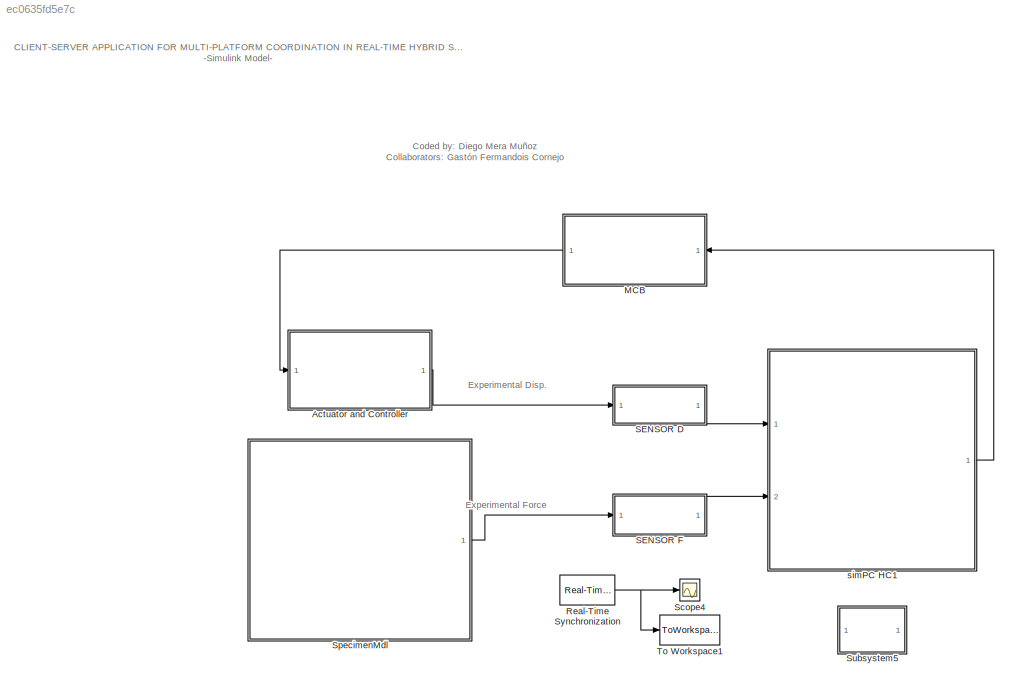
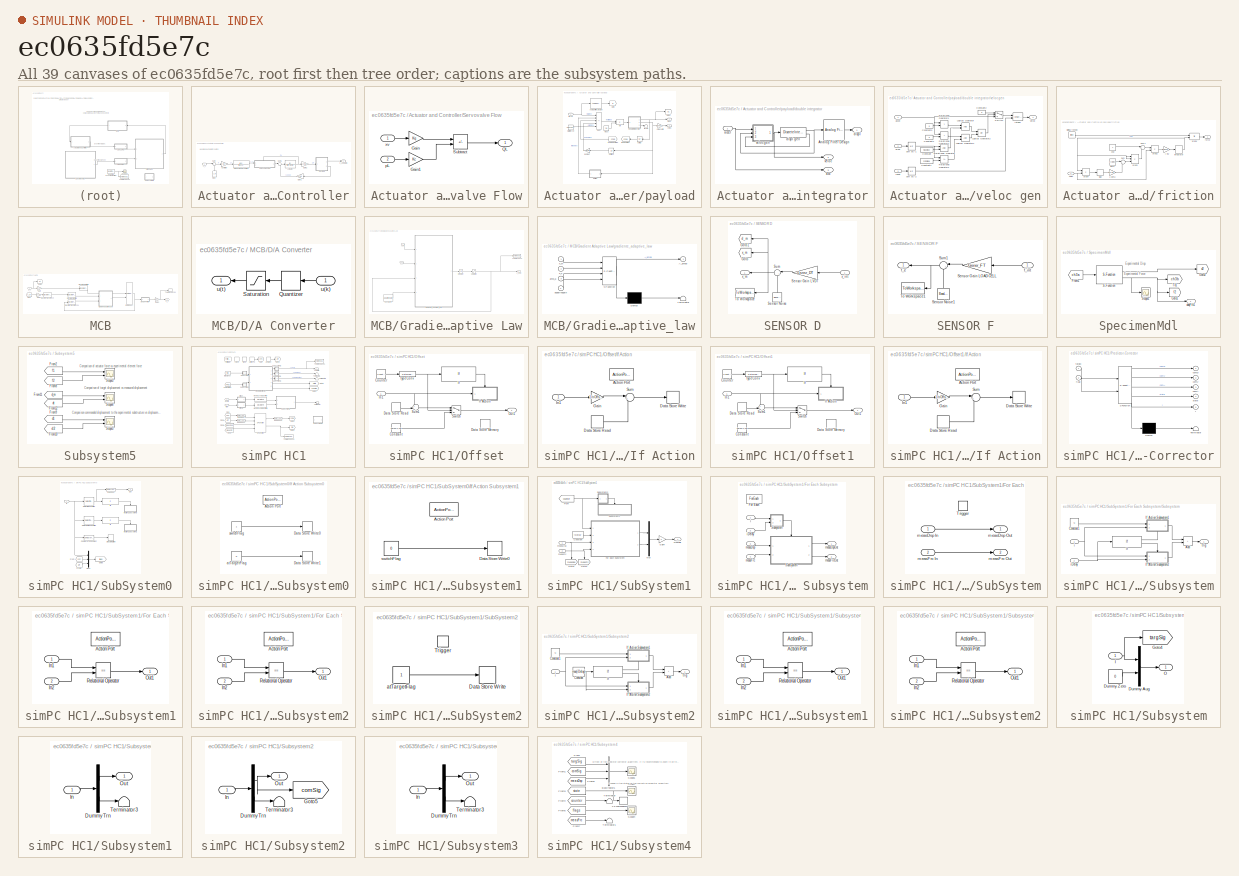
[diagram: thumbnail index - all 39 canvases of the model, root first then tree order]
MODEL slx_ec0635fd5e7c
KIND model
CONFIG AbsTol = 1e-6
CONFIG EnableMultiTasking = on
CONFIG FixedStep = samplePeriod
CONFIG InitFcn = clear('all');\ninitializeSimulation;
CONFIG MaxStep = auto
CONFIG MinStep = auto
CONFIG PreLoadFcn = initializeSimulation;
CONFIG RelTol = 1e-3
CONFIG SampleTimeConstraint = Unconstrained
CONFIG SolverName = ode8
CONFIG StartTime = 0.0
CONFIG StopTime = inf
BLOCK [SubSystem] Actuator and Controller
  Ports = [1, 1]
  RequestExecContextInheritance = off
BLOCK [TransferFcn] Actuator and Controller/Actuator
  Denominator = [Vt/(4*Be) Cl]
BLOCK [Gain] Actuator and Controller/Controller
  Gain = Kp
BLOCK [From] Actuator and Controller/From
  GotoTag = x_m
  NameLocation = left
  TagVisibility = global
BLOCK [Gain] Actuator and Controller/Gain1
  Gain = Area
  NameLocation = top
BLOCK [Gain] Actuator and Controller/Gain2
  Gain = Area
BLOCK [TransferFcn] Actuator and Controller/Servovalve Dynamics
  Denominator = [tauv 1]
  Numerator = [kv]
BLOCK [SubSystem] Actuator and Controller/Servovalve Flow
  PortSchema = {"entries":[{"content":{"sides":[{"content":{"connectorIds":["In1"]},"type":"ConnectorPlacement.EquallySpacedRectSide","uuid":"f3a8b7d5-d784-462c-bc82-60644eee5a75"},{"content":{"connectorIds":["Out1"],"side":"RIGHT"},"type":"ConnectorPlacement.EquallySpacedRectSide","uuid":"5e6f1f83-a632-4bc9-a761-43cae998e77f"},{"content":{"connectorIds":["In2"],"side":"TOP"},"type":"ConnectorPlacement.EquallySp...<+247ch>
  Ports = [2, 1]
  RequestExecContextInheritance = off
BLOCK [Gain] Actuator and Controller/Servovalve Flow/Gain
  Gain = Kq
BLOCK [Gain] Actuator and Controller/Servovalve Flow/Gain1
  Gain = Kc
BLOCK [Outport] Actuator and Controller/Servovalve Flow/QL
BLOCK [Sum] Actuator and Controller/Servovalve Flow/Subtract
  IconShape = rectangular
  Inputs = +-
  Ports = [2, 1]
BLOCK [Inport] Actuator and Controller/Servovalve Flow/pL
  Port = 2
BLOCK [Inport] Actuator and Controller/Servovalve Flow/xv
BLOCK [Sum] Actuator and Controller/Sum
  Inputs = |+-
  Ports = [2, 1]
BLOCK [Sum] Actuator and Controller/Sum1
  Inputs = |+-
  Ports = [2, 1]
BLOCK [SubSystem] Actuator and Controller/payload
  Ports = [1, 2]
  RequestExecContextInheritance = off
BLOCK [Reference] Actuator and Controller/payload/Analog Filter Design  REF=dsparch4/Analog
Filter Design
  Ports = [1, 1]
  SourceBlock = dsparch4/Analog\nFilter Design
  SourceProductBaseCode = DS
  SourceType = Analog Filter Design
BLOCK [Goto] Actuator and Controller/payload/Goto
  GotoTag = f1
  TagVisibility = global
BLOCK [Goto] Actuator and Controller/payload/Goto2
  GotoTag = d1
  TagVisibility = global
BLOCK [Sum] Actuator and Controller/payload/Sum
  IconShape = rectangular
  InputSameDT = on
  Inputs = +----
  OutDataTypeStr = Inherit: Same as first input
  Ports = [5, 1]
  SaturateOnIntegerOverflow = on
BLOCK [Gain] Actuator and Controller/payload/damper
  Gain = damperB*damperCanon
  OutDataTypeStr = Inherit: Same as input
  ParamDataTypeStr = Inherit: Same as input
  SaturateOnIntegerOverflow = on
BLOCK [Outport] Actuator and Controller/payload/displ
BLOCK [Product] Actuator and Controller/payload/div
  InputSameDT = on
  Inputs = */
  OutDataTypeStr = Inherit: Same as first input
  Ports = [2, 1]
  SaturateOnIntegerOverflow = on
BLOCK [SubSystem] Actuator and Controller/payload/double integrator
  Ports = [1, 3]
  RequestExecContextInheritance = off
BLOCK [Reference] Actuator and Controller/payload/double integrator/Analog Filter Design  REF=dsparch4/Analog
Filter Design
  Ports = [1, 1]
  SourceBlock = dsparch4/Analog\nFilter Design
  SourceProductBaseCode = DS
  SourceType = Analog Filter Design
BLOCK [Outport] Actuator and Controller/payload/double integrator/acc
  Port = 3
BLOCK [Inport] Actuator and Controller/payload/double integrator/accel
BLOCK [Outport] Actuator and Controller/payload/double integrator/displ
BLOCK [DiscreteIntegrator] Actuator and Controller/payload/double integrator/displ gen
  ICPrevOutput = DiscIntNeverNeededParam
  ICPrevScaledInput = DiscIntNeverNeededParam
  IntegratorMethod = Integration: Backward Euler
  LimitOutput = on
  LowerSaturationLimit = minDisplB*coef
  Ports = [1, 2]
  SampleTime = 0.5/1024
  ShowSaturationPort = on
  UpperSaturationLimit = maxDisplB*coef
BLOCK [Outport] Actuator and Controller/payload/double integrator/veloc
  Port = 2
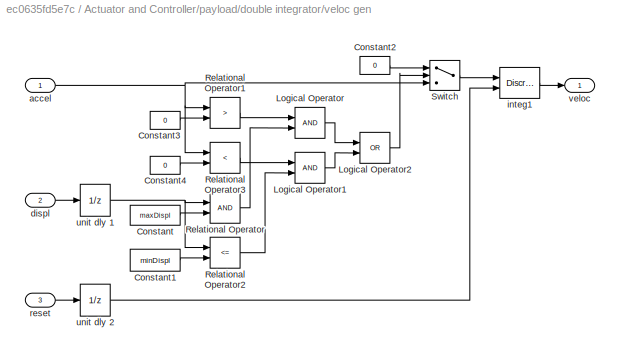
BLOCK [SubSystem] Actuator and Controller/payload/double integrator/veloc gen
  Ports = [3, 1]
  RequestExecContextInheritance = off
BLOCK [Constant] Actuator and Controller/payload/double integrator/veloc gen/Constant
  Value = maxDispl
BLOCK [Constant] Actuator and Controller/payload/double integrator/veloc gen/Constant1
  Value = minDispl
BLOCK [Constant] Actuator and Controller/payload/double integrator/veloc gen/Constant2
  Value = 0
BLOCK [Constant] Actuator and Controller/payload/double integrator/veloc gen/Constant3
  Value = 0
BLOCK [Constant] Actuator and Controller/payload/double integrator/veloc gen/Constant4
  Value = 0
BLOCK [Logic] Actuator and Controller/payload/double integrator/veloc gen/Logical Operator
  Ports = [2, 1]
BLOCK [Logic] Actuator and Controller/payload/double integrator/veloc gen/Logical Operator1
  Ports = [2, 1]
BLOCK [Logic] Actuator and Controller/payload/double integrator/veloc gen/Logical Operator2
  Operator = OR
  Ports = [2, 1]
BLOCK [RelationalOperator] Actuator and Controller/payload/double integrator/veloc gen/Relational Operator
  Ports = [2, 1]
BLOCK [RelationalOperator] Actuator and Controller/payload/double integrator/veloc gen/Relational Operator1
  Operator = >
  Ports = [2, 1]
BLOCK [RelationalOperator] Actuator and Controller/payload/double integrator/veloc gen/Relational Operator2
  Operator = <=
  Ports = [2, 1]
BLOCK [RelationalOperator] Actuator and Controller/payload/double integrator/veloc gen/Relational Operator3
  Operator = <
  Ports = [2, 1]
BLOCK [Switch] Actuator and Controller/payload/double integrator/veloc gen/Switch
  Threshold = 0.5
BLOCK [Inport] Actuator and Controller/payload/double integrator/veloc gen/accel
BLOCK [Inport] Actuator and Controller/payload/double integrator/veloc gen/displ
  Port = 2
BLOCK [DiscreteIntegrator] Actuator and Controller/payload/double integrator/veloc gen/integ1
  ExternalReset = either
  ICPrevOutput = DiscIntNeverNeededParam
  ICPrevScaledInput = DiscIntNeverNeededParam
  IntegratorMethod = Integration: Backward Euler
  LimitOutput = on
  LowerSaturationLimit = minVeloc
  Ports = [2, 1]
  SampleTime = 0.5/1024
  UpperSaturationLimit = maxVeloc
BLOCK [Inport] Actuator and Controller/payload/double integrator/veloc gen/reset
  Port = 3
BLOCK [UnitDelay] Actuator and Controller/payload/double integrator/veloc gen/unit dly 1
  HasFrameUpgradeWarning = on
  SampleTime = -1
BLOCK [UnitDelay] Actuator and Controller/payload/double integrator/veloc gen/unit dly 2
  HasFrameUpgradeWarning = on
  SampleTime = -1
BLOCK [Outport] Actuator and Controller/payload/double integrator/veloc gen/veloc
BLOCK [Inport] Actuator and Controller/payload/force
BLOCK [SubSystem] Actuator and Controller/payload/friction
  Ports = [1, 1]
  RequestExecContextInheritance = off
BLOCK [Gain] Actuator and Controller/payload/friction/1-beta
  Gain = 1-hysteresis
  OutDataTypeStr = Inherit: Same as input
  ParamDataTypeStr = Inherit: Same as input
  SaturateOnIntegerOverflow = on
BLOCK [Signum] Actuator and Controller/payload/friction/Sign
BLOCK [Sum] Actuator and Controller/payload/friction/Sum
  Inputs = |++
  Ports = [2, 1]
  SaturateOnIntegerOverflow = on
BLOCK [Sum] Actuator and Controller/payload/friction/Sum1
  Inputs = |+-
  Ports = [2, 1]
  SaturateOnIntegerOverflow = on
BLOCK [Constant] Actuator and Controller/payload/friction/beta
  Value = hysteresis
BLOCK [Outport] Actuator and Controller/payload/friction/force
BLOCK [DiscreteIntegrator] Actuator and Controller/payload/friction/integrator
  ICPrevOutput = DiscIntNeverNeededParam
  ICPrevScaledInput = DiscIntNeverNeededParam
  LimitOutput = on
  LowerSaturationLimit = -1
  Ports = [1, 1]
  SampleTime = -1
  UpperSaturationLimit = 1
BLOCK [Constant] Actuator and Controller/payload/friction/one
BLOCK [Product] Actuator and Controller/payload/friction/prod1
  InputSameDT = on
  OutDataTypeStr = Inherit: Same as first input
  Ports = [2, 1]
  SaturateOnIntegerOverflow = on
BLOCK [Product] Actuator and Controller/payload/friction/prod2
  InputSameDT = on
  OutDataTypeStr = Inherit: Same as first input
  Ports = [2, 1]
  SaturateOnIntegerOverflow = on
BLOCK [Product] Actuator and Controller/payload/friction/prod3
  InputSameDT = on
  Inputs = 3
  OutDataTypeStr = Inherit: Same as first input
  Ports = [3, 1]
  SaturateOnIntegerOverflow = on
BLOCK [Product] Actuator and Controller/payload/friction/prod4
  InputSameDT = on
  OutDataTypeStr = Inherit: Same as first input
  Ports = [2, 1]
  SaturateOnIntegerOverflow = on
BLOCK [Constant] Actuator and Controller/payload/friction/sliding friction
  Value = friction
BLOCK [Inport] Actuator and Controller/payload/friction/veloc
BLOCK [Gain] Actuator and Controller/payload/friction/y inv
  Gain = 1/max(eps, yieldDispl)
  OutDataTypeStr = Inherit: Same as input
  ParamDataTypeStr = Inherit: Same as input
  SaturateOnIntegerOverflow = on
BLOCK [From] Actuator and Controller/payload/from specimen
  GotoTag = ch3b
  TagVisibility = global
BLOCK [Constant] Actuator and Controller/payload/mass
  Value = me
BLOCK [Constant] Actuator and Controller/payload/static force
  Value = staticForceB*forceCanon
BLOCK [Terminator] Actuator and Controller/payload/term1
BLOCK [Goto] Actuator and Controller/payload/to specimen
  GotoTag = ch3a
  TagVisibility = global
BLOCK [UnitDelay] Actuator and Controller/payload/unit dly
  HasFrameUpgradeWarning = on
  SampleTime = -1
BLOCK [UnitDelay] Actuator and Controller/payload/unit dly1
  HasFrameUpgradeWarning = on
  SampleTime = -1
BLOCK [Outport] Actuator and Controller/payload/veloc
  Port = 2
BLOCK [Gain] Actuator and Controller/payload/veloc units
  Gain = 1/velocCanon
  OutDataTypeStr = Inherit: Same as input
  ParamDataTypeStr = Inherit: Same as input
  SaturateOnIntegerOverflow = on
BLOCK [Outport] Actuator and Controller/x_actuator1
  VectorParamsAs1DForOutWhenUnconnected = off
BLOCK [Inport] Actuator and Controller/x_c
BLOCK [SubSystem] MCB
  NameLocation = top
  Ports = [1, 1]
  RequestExecContextInheritance = off
BLOCK [SubSystem] MCB/D//A Converter
  NameLocation = top
  Ports = [1, 1]
  RequestExecContextInheritance = off
BLOCK [Quantizer] MCB/D//A Converter/Quantizer
  NameLocation = top
  QuantizationInterval = quantize_int
BLOCK [Saturate] MCB/D//A Converter/Saturation
  LowerLimit = sat_limit_lower
  NameLocation = top
  UpperLimit = sat_limit_upper
BLOCK [Inport] MCB/D//A Converter/u(k)
BLOCK [Outport] MCB/D//A Converter/u(t)
  VectorParamsAs1DForOutWhenUnconnected = off
BLOCK [DiscreteFir] MCB/Discrete FIR Filter1
  Coefficients = Derivadas
  InputPortMap = u0
  OutputPortMap = o0
  Ports = [1, 1]
BLOCK [DiscreteFir] MCB/Discrete FIR Filter2
  Coefficients = Derivadas
  InputPortMap = u0
  OutputPortMap = o0
  Ports = [1, 1]
BLOCK [DiscreteTransferFcn] MCB/Discrete Transfer Fcn
  Denominator = [denfilter]
  InputPortMap = u0
  Numerator = [numfilter]
  Ports = [1, 1]
BLOCK [DiscreteTransferFcn] MCB/Discrete Transfer Fcn1
  Denominator = [denfilter]
  InputPortMap = u0
  Numerator = [numfilter]
  Ports = [1, 1]
BLOCK [DotProduct] MCB/Dot Product
  OutDataTypeStr = Inherit: Inherit via internal rule
BLOCK [From] MCB/From
  GotoTag = x_m
  NameLocation = top
  TagVisibility = global
BLOCK [Gain] MCB/Gain
  Gain = 0.0254
BLOCK [Gain] MCB/Gain1
  Gain = 0.0254
BLOCK [Gain] MCB/Gain2
  Gain = 39.3701
BLOCK [Goto] MCB/Goto1
  GotoTag = dt
  TagVisibility = global
BLOCK [SubSystem] MCB/Gradient Adaptive Law
  Ports = [2, 1]
  RequestExecContextInheritance = off
BLOCK [Outport] MCB/Gradient Adaptive Law/A_amb
  VectorParamsAs1DForOutWhenUnconnected = off
BLOCK [Constant] MCB/Gradient Adaptive Law/Constant4
  Value = adaptivegain
BLOCK [Integrator] MCB/Gradient Adaptive Law/Integrator
  InitialCondition = A_amb_i'
  Ports = [1, 1]
BLOCK [Saturate] MCB/Gradient Adaptive Law/Saturation
  LowerLimit = min_amb
  UpperLimit = [max_amb]
BLOCK [ToWorkspace] MCB/Gradient Adaptive Law/To Workspace
  FixptAsFi = on
  MaxDataPoints = inf
  Ports = [1]
  SampleTime = -1
  SaveFormat = Timeseries
  VariableName = amb
BLOCK [SubSystem] MCB/Gradient Adaptive Law/gradiente_adaptive_law
  ErrorFcn = Stateflow.Translate.translate
  PermitHierarchicalResolution = ExplicitOnly
  Ports = [4, 1]
  RequestExecContextInheritance = off
  SFBlockType = MATLAB Function
  TreatAsAtomicUnit = on
BLOCK [Demux] MCB/Gradient Adaptive Law/gradiente_adaptive_law/ Demux 
  Outputs = 1
  Ports = [1, 1]
BLOCK [S-Function] MCB/Gradient Adaptive Law/gradiente_adaptive_law/ SFunction 
  EnableBusSupport = on
  FunctionName = sf_sfun
  PortCounts = [4 2]
  Ports = [4, 2]
  SFcnIsStateOwnerBlock = off
  SFunctionDeploymentMode = off
  Tag = Stateflow S-Function 4
BLOCK [Terminator] MCB/Gradient Adaptive Law/gradiente_adaptive_law/ Terminator 
BLOCK [Outport] MCB/Gradient Adaptive Law/gradiente_adaptive_law/A_ambp
  VectorParamsAs1DForOutWhenUnconnected = off
BLOCK [Inport] MCB/Gradient Adaptive Law/gradiente_adaptive_law/adaptivegain
  Port = 4
BLOCK [Inport] MCB/Gradient Adaptive Law/gradiente_adaptive_law/amb_a
  Port = 3
BLOCK [Inport] MCB/Gradient Adaptive Law/gradiente_adaptive_law/x_c
  Port = 2
BLOCK [Inport] MCB/Gradient Adaptive Law/gradiente_adaptive_law/x_m
BLOCK [Inport] MCB/Gradient Adaptive Law/x_c
  Port = 2
BLOCK [Inport] MCB/Gradient Adaptive Law/x_m
BLOCK [ToWorkspace] MCB/To Workspace1
  FixptAsFi = on
  MaxDataPoints = inf
  Ports = [1]
  SampleTime = -1
  SaveFormat = Timeseries
  VariableName = x_c
BLOCK [Outport] MCB/x_c
  VectorParamsAs1DForOutWhenUnconnected = off
BLOCK [Inport] MCB/x_t
BLOCK [Reference] Real-Time Synchronization  REF=sldrtlib/Real-Time
Synchronization
  Ports = [0, 1]
  SourceBlock = sldrtlib/Real-Time\nSynchronization
  SourceProductBaseCode = WT
  SourceType = Simulink Desktop Real-Time Synchronization
BLOCK [SubSystem] SENSOR D
  NameLocation = top
  Ports = [1, 1]
  RequestExecContextInheritance = off
BLOCK [Goto] SENSOR D/Goto
  GotoTag = x_m
  NameLocation = top
  TagVisibility = global
BLOCK [Goto] SENSOR D/Goto1
  GotoTag = d_m
  NameLocation = top
  TagVisibility = global
BLOCK [Gain] SENSOR D/Sensor Gain LVDT
  Gain = Gsnsr_DT
  OutDataTypeStr = Inherit: Same as input
  ParamDataTypeStr = Inherit: Same as input
  SaturateOnIntegerOverflow = on
BLOCK [Reference] SENSOR D/Sensor Noise  REF=simulink/Sources/Band-Limited
White Noise
  NameLocation = right
  Ports = [0, 1]
  SourceBlock = simulink/Sources/Band-Limited\nWhite Noise
  SourceProductBaseCode = SL
  SourceType = Band-Limited White Noise.
BLOCK [Sum] SENSOR D/Sum
  InputSameDT = on
  Inputs = |++
  NameLocation = top
  OutDataTypeStr = Inherit: Same as first input
  Ports = [2, 1]
  SaturateOnIntegerOverflow = on
BLOCK [ToWorkspace] SENSOR D/To Workspace
  FixptAsFi = on
  MaxDataPoints = inf
  NameLocation = top
  Ports = [1]
  SampleTime = -1
  SaveFormat = Timeseries
  VariableName = x_m
BLOCK [Inport] SENSOR D/x_int
BLOCK [Outport] SENSOR D/x_m
BLOCK [SubSystem] SENSOR F
  NameLocation = top
  Ports = [1, 1]
  RequestExecContextInheritance = off
BLOCK [Gain] SENSOR F/Sensor Gain LOAD CELL
  Gain = Gsnsr_FT
  OutDataTypeStr = Inherit: Same as input
  ParamDataTypeStr = Inherit: Same as input
  SaturateOnIntegerOverflow = on
BLOCK [Reference] SENSOR F/Sensor Noise1  REF=simulink/Sources/Band-Limited
White Noise
  NameLocation = right
  Ports = [0, 1]
  SourceBlock = simulink/Sources/Band-Limited\nWhite Noise
  SourceProductBaseCode = SL
  SourceType = Band-Limited White Noise.
BLOCK [Sum] SENSOR F/Sum1
  InputSameDT = on
  Inputs = |++
  NameLocation = top
  OutDataTypeStr = Inherit: Same as first input
  Ports = [2, 1]
  SaturateOnIntegerOverflow = on
BLOCK [ToWorkspace] SENSOR F/To Workspace1
  FixptAsFi = on
  MaxDataPoints = inf
  NameLocation = top
  Ports = [1]
  SampleTime = -1
  SaveFormat = Timeseries
  VariableName = f_m
BLOCK [Outport] SENSOR F/f_e 
BLOCK [Inport] SENSOR F/f_int
BLOCK [Scope] Scope4
  Floating = off
  NumInputPorts = 1
  Ports = [1]
  ScopeSpecificationString = Simulink.scopes.TimeScopeBlockCfg('CurrentConfiguration', extmgr.ConfigurationSet(extmgr.Configuration('Core','General UI',true),extmgr.Configuration('Core','Source UI',true),extmgr.Configuration('Sources','WiredSimulink',true,'DataLoggingVariableName','ScopeData1','DataLoggingSaveFormat','Array','DataLoggingDecimation','1','DataLoggingDecimateData',true),extmgr.Configuration('Visuals','Time Domai...<+1694ch>
BLOCK [SubSystem] SpecimenMdl
  Ports = [0, 1]
  RequestExecContextInheritance = off
BLOCK [From] SpecimenMdl/From1
  GotoTag = ch3a
  TagVisibility = global
BLOCK [Goto] SpecimenMdl/Goto1
  GotoTag = f2
  TagVisibility = global
BLOCK [Goto] SpecimenMdl/Goto2
  GotoTag = d2
  TagVisibility = global
BLOCK [S-Function] SpecimenMdl/S-Function
  EnableBusSupport = off
  FunctionName = SFun_GenericClient
  Parameters = ipAddr,ipPort,dataSize
  Ports = [1, 2]
  SFcnIsStateOwnerBlock = off
  SFunctionDeploymentMode = off
BLOCK [Scope] SpecimenMdl/Scope1
  Floating = off
  NumInputPorts = 1
  Ports = [1]
  ScopeSpecificationString = Simulink.scopes.TimeScopeBlockCfg('CurrentConfiguration', extmgr.ConfigurationSet(extmgr.Configuration('Core','General UI',true),extmgr.Configuration('Core','Source UI',true),extmgr.Configuration('Sources','WiredSimulink',true,'DataLoggingVariableName','ScopeData1','DataLoggingSaveFormat','StructureWithTime','DataLoggingDecimation','1','DataLoggingDecimateData',true),extmgr.Configuration('Visuals'...<+1743ch>
BLOCK [Goto] SpecimenMdl/To1
  GotoTag = ch3b
  TagVisibility = global
BLOCK [Outport] SpecimenMdl/daqFrc1
BLOCK [SubSystem] Subsystem5
  Ports = []
  RequestExecContextInheritance = off
BLOCK [From] Subsystem5/From10
  GotoTag = d2
  TagVisibility = global
BLOCK [From] Subsystem5/From11
  GotoTag = d_m
  NameLocation = top
  TagVisibility = global
BLOCK [From] Subsystem5/From12
  GotoTag = dt
  TagVisibility = global
BLOCK [From] Subsystem5/From2
  GotoTag = f1
  TagVisibility = global
BLOCK [From] Subsystem5/From8
  GotoTag = f2
  TagVisibility = global
BLOCK [From] Subsystem5/From9
  GotoTag = d1
  TagVisibility = global
BLOCK [Scope] Subsystem5/Scope3
  Floating = off
  NumInputPorts = 2
  Ports = [2]
  ScopeSpecificationString = Simulink.scopes.TimeScopeBlockCfg('CurrentConfiguration', extmgr.ConfigurationSet(extmgr.Configuration('Core','General UI',true),extmgr.Configuration('Core','Source UI',true),extmgr.Configuration('Sources','WiredSimulink',true,'DataLoggingVariableName','ScopeData1','DataLoggingSaveFormat','Array','DataLoggingDecimation','1','DataLoggingDecimateData',true),extmgr.Configuration('Visuals','Time Domai...<+1824ch>
BLOCK [Scope] Subsystem5/Scope5
  Floating = off
  NumInputPorts = 2
  Ports = [2]
  ScopeSpecificationString = Simulink.scopes.TimeScopeBlockCfg('CurrentConfiguration', extmgr.ConfigurationSet(extmgr.Configuration('Core','General UI',true),extmgr.Configuration('Core','Source UI',true),extmgr.Configuration('Sources','WiredSimulink',true,'DataLoggingVariableName','ScopeData2','DataLoggingSaveFormat','Array','DataLoggingDecimation','1','DataLoggingDecimateData',true),extmgr.Configuration('Visuals','Time Domai...<+1813ch>
BLOCK [Scope] Subsystem5/Scope6
  Floating = off
  NumInputPorts = 2
  Ports = [2]
  ScopeSpecificationString = Simulink.scopes.TimeScopeBlockCfg('CurrentConfiguration', extmgr.ConfigurationSet(extmgr.Configuration('Core','General UI',true),extmgr.Configuration('Core','Source UI',true),extmgr.Configuration('Sources','WiredSimulink',true,'DataLoggingVariableName','ScopeData3','DataLoggingSaveFormat','Array','DataLoggingDecimation','1','DataLoggingDecimateData',true),extmgr.Configuration('Visuals','Time Domai...<+1793ch>
BLOCK [ToWorkspace] To Workspace1
  FixptAsFi = on
  MaxDataPoints = inf
  Ports = [1]
  SampleTime = -1
  SaveFormat = Timeseries
  VariableName = M_T
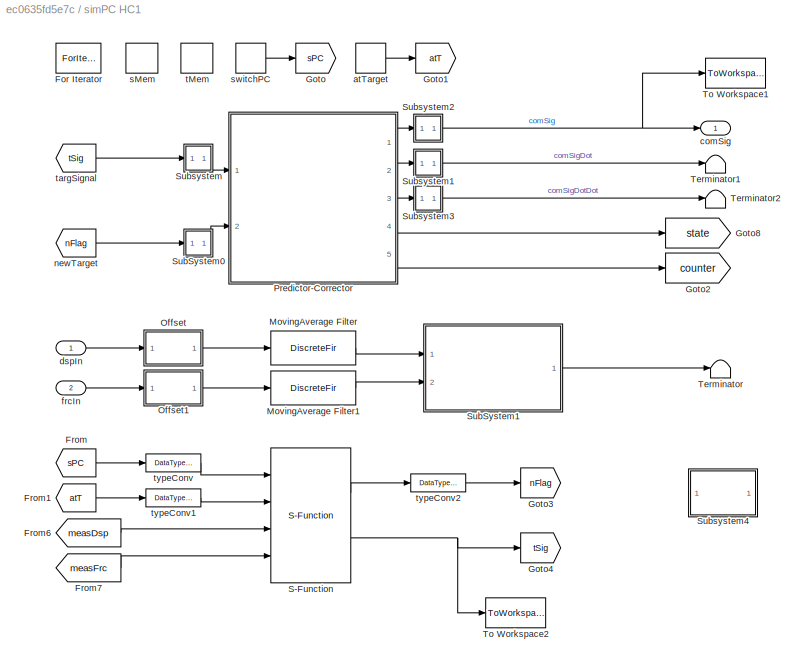
BLOCK [SubSystem] simPC HC1
  Ports = [2, 1]
  RequestExecContextInheritance = off
BLOCK [ForIterator] simPC HC1/For Iterator
  IterationLimit = upFact
  Ports = []
  ShowIterationPort = off
BLOCK [From] simPC HC1/From
  GotoTag = sPC
  IconDisplay = Signal name
  TagVisibility = global
BLOCK [From] simPC HC1/From1
  GotoTag = atT
  IconDisplay = Signal name
  TagVisibility = global
BLOCK [From] simPC HC1/From6
  GotoTag = measDsp
  TagVisibility = global
BLOCK [From] simPC HC1/From7
  GotoTag = measFrc
  TagVisibility = global
BLOCK [Goto] simPC HC1/Goto
  GotoTag = sPC
  TagVisibility = global
BLOCK [Goto] simPC HC1/Goto1
  GotoTag = atT
  TagVisibility = global
BLOCK [Goto] simPC HC1/Goto2
  GotoTag = counter
  TagVisibility = global
BLOCK [Goto] simPC HC1/Goto3
  GotoTag = nFlag
  TagVisibility = global
BLOCK [Goto] simPC HC1/Goto4
  GotoTag = tSig
  TagVisibility = global
BLOCK [Goto] simPC HC1/Goto8
  GotoTag = state
  TagVisibility = global
BLOCK [DiscreteFir] simPC HC1/MovingAverage Filter
  Coefficients = 1/numSample*ones(1,numSample)
  InputPortMap = u0
  OutputPortMap = o0
  Ports = [1, 1]
BLOCK [DiscreteFir] simPC HC1/MovingAverage Filter1
  Coefficients = 1/numSample*ones(1,numSample)
  InputPortMap = u0
  OutputPortMap = o0
  Ports = [1, 1]
BLOCK [SubSystem] simPC HC1/Offset
  Ports = [1, 1]
  RequestExecContextInheritance = off
BLOCK [Constant] simPC HC1/Offset/Constant
  Value = zeros(1,nS)
BLOCK [Reference] simPC HC1/Offset/Counter  REF=simulink/Sources/Counter
Free-Running
  Ports = [0, 1]
  SourceBlock = simulink/Sources/Counter\nFree-Running
  SourceProductBaseCode = SL
  SourceType = Counter Free-Running
BLOCK [DataStoreMemory] simPC HC1/Offset/Data Store Memory
  DataStoreName = x0
  InitialValue = zeros(1,nS)
  OutDataTypeStr = double
  ShowAdditionalParam = off
  SignalType = real
BLOCK [DataStoreRead] simPC HC1/Offset/Data Store Read
  DataStoreName = x0
  Ports = [0, 1]
BLOCK [If] simPC HC1/Offset/If
  IfExpression = u1 < nOffset
  Ports = [1, 1]
  ShowElse = off
BLOCK [SubSystem] simPC HC1/Offset/If Action
  Ports = [1, 0, 0, 0, 0, 0, 0, 1]
  RequestExecContextInheritance = off
  TreatAsAtomicUnit = on
BLOCK [ActionPort] simPC HC1/Offset/If Action/Action Port
  ActionPortLabel = if(u1 < nOffset)
  PropagateVarSize = During execution
BLOCK [DataStoreRead] simPC HC1/Offset/If Action/Data Store Read
  DataStoreName = x0
  Ports = [0, 1]
BLOCK [DataStoreWrite] simPC HC1/Offset/If Action/Data Store Write
  DataStoreName = x0
  Ports = [1]
BLOCK [Gain] simPC HC1/Offset/If Action/Gain
  Gain = 1/nOffset
  OutDataTypeStr = Inherit: Same as input
  ParamDataTypeStr = Inherit: Same as input
  SaturateOnIntegerOverflow = on
BLOCK [Inport] simPC HC1/Offset/If Action/In1
BLOCK [Sum] simPC HC1/Offset/If Action/Sum
  InputSameDT = on
  Inputs = |++
  OutDataTypeStr = Inherit: Same as first input
  Ports = [2, 1]
  SaturateOnIntegerOverflow = on
BLOCK [Inport] simPC HC1/Offset/In1
BLOCK [Outport] simPC HC1/Offset/Out1
BLOCK [Sum] simPC HC1/Offset/Sum1
  InputSameDT = on
  Inputs = +-|
  OutDataTypeStr = Inherit: Same as first input
  Ports = [2, 1]
  SaturateOnIntegerOverflow = on
BLOCK [Switch] simPC HC1/Offset/Switch
  Threshold = nOffset
BLOCK [DataTypeConversion] simPC HC1/Offset/typeConv
  OutDataTypeStr = double
  RndMeth = Round
BLOCK [SubSystem] simPC HC1/Offset1
  Ports = [1, 1]
  RequestExecContextInheritance = off
BLOCK [Constant] simPC HC1/Offset1/Constant
  Value = zeros(1,nS)
BLOCK [Reference] simPC HC1/Offset1/Counter  REF=simulink/Sources/Counter
Free-Running
  Ports = [0, 1]
  SourceBlock = simulink/Sources/Counter\nFree-Running
  SourceProductBaseCode = SL
  SourceType = Counter Free-Running
BLOCK [DataStoreMemory] simPC HC1/Offset1/Data Store Memory
  DataStoreName = x0
  InitialValue = zeros(1,nS)
  OutDataTypeStr = double
  ShowAdditionalParam = off
  SignalType = real
BLOCK [DataStoreRead] simPC HC1/Offset1/Data Store Read
  DataStoreName = x0
  Ports = [0, 1]
BLOCK [If] simPC HC1/Offset1/If
  IfExpression = u1 < nOffset
  Ports = [1, 1]
  ShowElse = off
BLOCK [SubSystem] simPC HC1/Offset1/If Action
  Ports = [1, 0, 0, 0, 0, 0, 0, 1]
  RequestExecContextInheritance = off
  TreatAsAtomicUnit = on
BLOCK [ActionPort] simPC HC1/Offset1/If Action/Action Port
  ActionPortLabel = if(u1 < nOffset)
  PropagateVarSize = During execution
BLOCK [DataStoreRead] simPC HC1/Offset1/If Action/Data Store Read
  DataStoreName = x0
  Ports = [0, 1]
BLOCK [DataStoreWrite] simPC HC1/Offset1/If Action/Data Store Write
  DataStoreName = x0
  Ports = [1]
BLOCK [Gain] simPC HC1/Offset1/If Action/Gain
  Gain = 1/nOffset
  OutDataTypeStr = Inherit: Same as input
  ParamDataTypeStr = Inherit: Same as input
  SaturateOnIntegerOverflow = on
BLOCK [Inport] simPC HC1/Offset1/If Action/In1
BLOCK [Sum] simPC HC1/Offset1/If Action/Sum
  InputSameDT = on
  Inputs = |++
  OutDataTypeStr = Inherit: Same as first input
  Ports = [2, 1]
  SaturateOnIntegerOverflow = on
BLOCK [Inport] simPC HC1/Offset1/In1
BLOCK [Outport] simPC HC1/Offset1/Out1
BLOCK [Sum] simPC HC1/Offset1/Sum1
  InputSameDT = on
  Inputs = +-|
  OutDataTypeStr = Inherit: Same as first input
  Ports = [2, 1]
  SaturateOnIntegerOverflow = on
BLOCK [Switch] simPC HC1/Offset1/Switch
  Threshold = nOffset
BLOCK [DataTypeConversion] simPC HC1/Offset1/typeConv
  OutDataTypeStr = double
  RndMeth = Round
BLOCK [SubSystem] simPC HC1/Predictor-Corrector
  ErrorFcn = Stateflow.Translate.translate
  PermitHierarchicalResolution = ExplicitOnly
  Ports = [2, 5]
  RequestExecContextInheritance = off
  SFBlockType = Chart
  TreatAsAtomicUnit = on
BLOCK [Demux] simPC HC1/Predictor-Corrector/ Demux 
  Outputs = 1
  Ports = [1, 1]
BLOCK [S-Function] simPC HC1/Predictor-Corrector/ SFunction 
  EnableBusSupport = on
  FunctionName = sf_sfun
  Parameters = N,dtCon,dtInt,dtSim,nDOF
  PortCounts = [2 6]
  Ports = [2, 6]
  SFcnIsStateOwnerBlock = off
  SFunctionDeploymentMode = off
  Tag = Stateflow S-Function 1
BLOCK [Terminator] simPC HC1/Predictor-Corrector/ Terminator 
BLOCK [Outport] simPC HC1/Predictor-Corrector/comA
  Port = 3
BLOCK [Outport] simPC HC1/Predictor-Corrector/comD
BLOCK [Outport] simPC HC1/Predictor-Corrector/comV
  Port = 2
BLOCK [Inport] simPC HC1/Predictor-Corrector/flag
  Port = 2
BLOCK [Outport] simPC HC1/Predictor-Corrector/i
  Port = 5
BLOCK [Outport] simPC HC1/Predictor-Corrector/state
  Port = 4
BLOCK [Inport] simPC HC1/Predictor-Corrector/targD
BLOCK [S-Function] simPC HC1/S-Function
  EnableBusSupport = off
  FunctionName = SFun_OPFConnect
  Parameters = ipPort
  Ports = [4, 2]
  SFcnIsStateOwnerBlock = off
  SFunctionDeploymentMode = off
BLOCK [SubSystem] simPC HC1/SubSystem0
  Ports = [1, 1]
  RequestExecContextInheritance = off
BLOCK [Reference] simPC HC1/SubSystem0/Compare To Constant  REF=simulink/Logic and Bit
Operations/Compare
To Constant
  Ports = [1, 1]
  SourceBlock = simulink/Logic and Bit\nOperations/Compare\nTo Constant
  SourceProductBaseCode = SL
  SourceType = Compare To Constant
BLOCK [Reference] simPC HC1/SubSystem0/Detect Fall Nonpositive  REF=simulink/Logic and Bit
Operations/Detect Fall
Nonpositive
  Ports = [1, 1]
  SourceBlock = simulink/Logic and Bit\nOperations/Detect Fall\nNonpositive
  SourceProductBaseCode = SL
  SourceType = Detect Fall Nonpositive
BLOCK [Reference] simPC HC1/SubSystem0/Detect Rise Positive  REF=simulink/Logic and Bit
Operations/Detect Rise
Positive
  Ports = [1, 1]
  SourceBlock = simulink/Logic and Bit\nOperations/Detect Rise\nPositive
  SourceProductBaseCode = SL
  SourceType = Detect Rise Positive
BLOCK [From] simPC HC1/SubSystem0/From
  GotoTag = sPC
  IconDisplay = Signal name
  TagVisibility = global
BLOCK [From] simPC HC1/SubSystem0/From1
  GotoTag = atT
  IconDisplay = Signal name
  TagVisibility = global
BLOCK [Goto] simPC HC1/SubSystem0/Goto8
  GotoTag = flags
  TagVisibility = global
BLOCK [SubSystem] simPC HC1/SubSystem0/If Action Subsystem0
  Ports = [0, 0, 0, 0, 0, 0, 0, 1]
  RequestExecContextInheritance = off
  TreatAsAtomicUnit = on
BLOCK [ActionPort] simPC HC1/SubSystem0/If Action Subsystem0/Action Port
  ActionPortLabel = if(u1 == 1)
  PropagateVarSize = During execution
BLOCK [DataStoreWrite] simPC HC1/SubSystem0/If Action Subsystem0/Data Store Write0
  DataStoreName = sFlag
  Ports = [1]
BLOCK [DataStoreWrite] simPC HC1/SubSystem0/If Action Subsystem0/Data Store Write1
  DataStoreName = tFlag
  Ports = [1]
BLOCK [Constant] simPC HC1/SubSystem0/If Action Subsystem0/atTargetFlag
  OutDataTypeStr = int32
  SampleTime = -1
  Value = 0
BLOCK [Constant] simPC HC1/SubSystem0/If Action Subsystem0/switchFlag
  OutDataTypeStr = int32
  SampleTime = -1
BLOCK [SubSystem] simPC HC1/SubSystem0/If Action Subsystem1
  Ports = [0, 0, 0, 0, 0, 0, 0, 1]
  RequestExecContextInheritance = off
  TreatAsAtomicUnit = on
BLOCK [ActionPort] simPC HC1/SubSystem0/If Action Subsystem1/Action Port
  ActionPortLabel = if(u1 == 1)
  PropagateVarSize = During execution
BLOCK [DataStoreWrite] simPC HC1/SubSystem0/If Action Subsystem1/Data Store Write0
  DataStoreName = sFlag
  Ports = [1]
BLOCK [Constant] simPC HC1/SubSystem0/If Action Subsystem1/switchFlag
  OutDataTypeStr = int32
  SampleTime = -1
  Value = 0
BLOCK [If] simPC HC1/SubSystem0/If0
  IfExpression = u1 == 1
  Ports = [1, 1]
  ShowElse = off
BLOCK [If] simPC HC1/SubSystem0/If1
  IfExpression = u1 == 1
  Ports = [1, 1]
  ShowElse = off
BLOCK [Inport] simPC HC1/SubSystem0/In
BLOCK [Mux] simPC HC1/SubSystem0/Mux1
  DisplayOption = bar
  Inputs = 3
  NameLocation = top
  Ports = [3, 1]
BLOCK [Outport] simPC HC1/SubSystem0/Out
BLOCK [Stop] simPC HC1/SubSystem0/Stop Simulation
BLOCK [DataTypeConversion] simPC HC1/SubSystem0/typeConv
  OutDataTypeStr = int32
  RndMeth = Round
BLOCK [SubSystem] simPC HC1/SubSystem1
  Ports = [2, 1]
  RequestExecContextInheritance = off
BLOCK [Constant] simPC HC1/SubSystem1/Constant
  Value = iDelay
BLOCK [SubSystem] simPC HC1/SubSystem1/For Each Subsystem
  Ports = [4, 2]
  RequestExecContextInheritance = off
  TreatAsAtomicUnit = on
BLOCK [ForEach] simPC HC1/SubSystem1/For Each Subsystem/For Each
  DisableCoverage = on
  Ports = []
BLOCK [SubSystem] simPC HC1/SubSystem1/For Each Subsystem/SubSystem
  Ports = [2, 2, 0, 1]
  RequestExecContextInheritance = off
  TreatAsAtomicUnit = on
BLOCK [TriggerPort] simPC HC1/SubSystem1/For Each Subsystem/SubSystem/Trigger
  Ports = []
  StatesWhenEnabling = held
  VariantControl = (inherit)
BLOCK [Inport] simPC HC1/SubSystem1/For Each Subsystem/SubSystem/measDsp In
BLOCK [Outport] simPC HC1/SubSystem1/For Each Subsystem/SubSystem/measDsp Out
  InitialOutput = [0]
BLOCK [Inport] simPC HC1/SubSystem1/For Each Subsystem/SubSystem/measFrc In
  Port = 2
BLOCK [Outport] simPC HC1/SubSystem1/For Each Subsystem/SubSystem/measFrc Out
  InitialOutput = [0]
  Port = 2
BLOCK [SubSystem] simPC HC1/SubSystem1/For Each Subsystem/Subsystem
  Ports = [2, 1]
  RequestExecContextInheritance = off
BLOCK [Sum] simPC HC1/SubSystem1/For Each Subsystem/Subsystem/Add
  IconShape = rectangular
  Ports = [2, 1]
BLOCK [Constant] simPC HC1/SubSystem1/For Each Subsystem/Subsystem/Constant1
  Value = N
BLOCK [If] simPC HC1/SubSystem1/For Each Subsystem/Subsystem/If
  IfExpression = u1 == 0
  Ports = [1, 2]
BLOCK [SubSystem] simPC HC1/SubSystem1/For Each Subsystem/Subsystem/If Action Subsystem1
  NameLocation = top
  Ports = [2, 1, 0, 0, 0, 0, 0, 1]
  RequestExecContextInheritance = off
  TreatAsAtomicUnit = on
BLOCK [ActionPort] simPC HC1/SubSystem1/For Each Subsystem/Subsystem/If Action Subsystem1/Action Port
  ActionPortLabel = if(u1 == 0)
BLOCK [Inport] simPC HC1/SubSystem1/For Each Subsystem/Subsystem/If Action Subsystem1/In1
BLOCK [Inport] simPC HC1/SubSystem1/For Each Subsystem/Subsystem/If Action Subsystem1/In2
  Port = 2
BLOCK [Outport] simPC HC1/SubSystem1/For Each Subsystem/Subsystem/If Action Subsystem1/Out1
BLOCK [RelationalOperator] simPC HC1/SubSystem1/For Each Subsystem/Subsystem/If Action Subsystem1/Relational Operator
  InputSameDT = off
  Operator = ==
  OutDataTypeStr = boolean
  Ports = [2, 1]
BLOCK [SubSystem] simPC HC1/SubSystem1/For Each Subsystem/Subsystem/If Action Subsystem2
  Ports = [2, 1, 0, 0, 0, 0, 0, 1]
  RequestExecContextInheritance = off
  TreatAsAtomicUnit = on
BLOCK [ActionPort] simPC HC1/SubSystem1/For Each Subsystem/Subsystem/If Action Subsystem2/Action Port
  ActionPortLabel = else
BLOCK [Inport] simPC HC1/SubSystem1/For Each Subsystem/Subsystem/If Action Subsystem2/In1
BLOCK [Inport] simPC HC1/SubSystem1/For Each Subsystem/Subsystem/If Action Subsystem2/In2
  Port = 2
BLOCK [Outport] simPC HC1/SubSystem1/For Each Subsystem/Subsystem/If Action Subsystem2/Out1
BLOCK [RelationalOperator] simPC HC1/SubSystem1/For Each Subsystem/Subsystem/If Action Subsystem2/Relational Operator
  InputSameDT = off
  Operator = ==
  OutDataTypeStr = boolean
  Ports = [2, 1]
BLOCK [Inport] simPC HC1/SubSystem1/For Each Subsystem/Subsystem/i
BLOCK [Inport] simPC HC1/SubSystem1/For Each Subsystem/Subsystem/iDelay
  Port = 2
BLOCK [Outport] simPC HC1/SubSystem1/For Each Subsystem/Subsystem/trig
BLOCK [Inport] simPC HC1/SubSystem1/For Each Subsystem/i
BLOCK [Inport] simPC HC1/SubSystem1/For Each Subsystem/iDelay
  Partition = on
  PartitionDimension = 1
  PartitionOffset = 0
  PartitionWidth = 1
  Port = 2
BLOCK [Inport] simPC HC1/SubSystem1/For Each Subsystem/measDsp
  Partition = on
  PartitionDimension = 1
  PartitionOffset = 0
  PartitionWidth = 1
  Port = 3
BLOCK [Outport] simPC HC1/SubSystem1/For Each Subsystem/measDspOut
  ConcatenationDimension = 1
BLOCK [Inport] simPC HC1/SubSystem1/For Each Subsystem/measFrc
  Partition = on
  PartitionDimension = 1
  PartitionOffset = 0
  PartitionWidth = 1
  Port = 4
BLOCK [Outport] simPC HC1/SubSystem1/For Each Subsystem/measFrcOut
  ConcatenationDimension = 1
  Port = 2
BLOCK [From] simPC HC1/SubSystem1/From
  GotoTag = counter
  TagVisibility = global
BLOCK [Gain] simPC HC1/SubSystem1/Gain4
  OutDataTypeStr = Inherit: Same as input
  ParamDataTypeStr = Inherit: Same as input
  SaturateOnIntegerOverflow = on
BLOCK [Goto] simPC HC1/SubSystem1/Goto1
  GotoTag = measDsp
  NameLocation = right
  TagVisibility = global
BLOCK [Goto] simPC HC1/SubSystem1/Goto4
  GotoTag = measFrc
  NameLocation = right
  TagVisibility = global
BLOCK [Mux] simPC HC1/SubSystem1/Mux
  DisplayOption = bar
  Inputs = 2
  Ports = [2, 1]
BLOCK [SubSystem] simPC HC1/SubSystem1/SubSystem2
  Ports = [0, 0, 0, 1]
  RequestExecContextInheritance = off
  TreatAsAtomicUnit = on
BLOCK [DataStoreWrite] simPC HC1/SubSystem1/SubSystem2/Data Store Write
  DataStoreName = tFlag
  Ports = [1]
BLOCK [TriggerPort] simPC HC1/SubSystem1/SubSystem2/Trigger
  Ports = []
  StatesWhenEnabling = held
  VariantControl = (inherit)
BLOCK [Constant] simPC HC1/SubSystem1/SubSystem2/atTargetFlag
  OutDataTypeStr = int32
  SampleTime = -1
BLOCK [SubSystem] simPC HC1/SubSystem1/Subsystem2
  Ports = [1, 1]
  RequestExecContextInheritance = off
BLOCK [Sum] simPC HC1/SubSystem1/Subsystem2/Add
  IconShape = rectangular
  Ports = [2, 1]
BLOCK [Constant] simPC HC1/SubSystem1/Subsystem2/Constant
  Value = max(iDelay)
BLOCK [Constant] simPC HC1/SubSystem1/Subsystem2/Constant1
  Value = N
BLOCK [If] simPC HC1/SubSystem1/Subsystem2/If
  IfExpression = u1 == 0
  Ports = [1, 2]
BLOCK [SubSystem] simPC HC1/SubSystem1/Subsystem2/If Action Subsystem1
  NameLocation = top
  Ports = [2, 1, 0, 0, 0, 0, 0, 1]
  RequestExecContextInheritance = off
  TreatAsAtomicUnit = on
BLOCK [ActionPort] simPC HC1/SubSystem1/Subsystem2/If Action Subsystem1/Action Port
  ActionPortLabel = if(u1 == 0)
BLOCK [Inport] simPC HC1/SubSystem1/Subsystem2/If Action Subsystem1/In1
BLOCK [Inport] simPC HC1/SubSystem1/Subsystem2/If Action Subsystem1/In2
  Port = 2
BLOCK [Outport] simPC HC1/SubSystem1/Subsystem2/If Action Subsystem1/Out1
BLOCK [RelationalOperator] simPC HC1/SubSystem1/Subsystem2/If Action Subsystem1/Relational Operator
  InputSameDT = off
  Operator = ==
  OutDataTypeStr = boolean
  Ports = [2, 1]
BLOCK [SubSystem] simPC HC1/SubSystem1/Subsystem2/If Action Subsystem2
  Ports = [2, 1, 0, 0, 0, 0, 0, 1]
  RequestExecContextInheritance = off
  TreatAsAtomicUnit = on
BLOCK [ActionPort] simPC HC1/SubSystem1/Subsystem2/If Action Subsystem2/Action Port
  ActionPortLabel = else
BLOCK [Inport] simPC HC1/SubSystem1/Subsystem2/If Action Subsystem2/In1
BLOCK [Inport] simPC HC1/SubSystem1/Subsystem2/If Action Subsystem2/In2
  Port = 2
BLOCK [Outport] simPC HC1/SubSystem1/Subsystem2/If Action Subsystem2/Out1
BLOCK [RelationalOperator] simPC HC1/SubSystem1/Subsystem2/If Action Subsystem2/Relational Operator
  InputSameDT = off
  Operator = ==
  OutDataTypeStr = boolean
  Ports = [2, 1]
BLOCK [Inport] simPC HC1/SubSystem1/Subsystem2/i
BLOCK [Outport] simPC HC1/SubSystem1/Subsystem2/trig
BLOCK [Inport] simPC HC1/SubSystem1/measDsp
BLOCK [Inport] simPC HC1/SubSystem1/measFrc
  Port = 2
BLOCK [Outport] simPC HC1/SubSystem1/measSig
BLOCK [SubSystem] simPC HC1/Subsystem
  Ports = [1, 1]
  RequestExecContextInheritance = off
BLOCK [Mux] simPC HC1/Subsystem/Dummy Aug
  DisplayOption = bar
  Inputs = [nDOF 1]
  Ports = [2, 1]
BLOCK [Constant] simPC HC1/Subsystem/Dummy Zero
  OutDataTypeStr = double
  SampleTime = -1
  Value = 0
BLOCK [Goto] simPC HC1/Subsystem/Goto4
  GotoTag = targSig
  TagVisibility = global
BLOCK [Inport] simPC HC1/Subsystem/I
  PortDimensions = nDOF
BLOCK [Outport] simPC HC1/Subsystem/O
  PortDimensions = nDOF+1
BLOCK [SubSystem] simPC HC1/Subsystem1
  Ports = [1, 1]
  RequestExecContextInheritance = off
BLOCK [Demux] simPC HC1/Subsystem1/Dummy Trn
  Outputs = [nDOF 1]
  Ports = [1, 2]
BLOCK [Inport] simPC HC1/Subsystem1/In
  PortDimensions = nDOF+1
BLOCK [Outport] simPC HC1/Subsystem1/Out
  PortDimensions = nDOF
BLOCK [Terminator] simPC HC1/Subsystem1/Terminator3
BLOCK [SubSystem] simPC HC1/Subsystem2
  Ports = [1, 1]
  RequestExecContextInheritance = off
BLOCK [Demux] simPC HC1/Subsystem2/Dummy Trn
  Outputs = [nDOF 1]
  Ports = [1, 2]
BLOCK [Goto] simPC HC1/Subsystem2/Goto5
  GotoTag = comSig
  TagVisibility = global
BLOCK [Inport] simPC HC1/Subsystem2/In
  PortDimensions = nDOF+1
BLOCK [Outport] simPC HC1/Subsystem2/Out
  PortDimensions = nDOF
BLOCK [Terminator] simPC HC1/Subsystem2/Terminator3
BLOCK [SubSystem] simPC HC1/Subsystem3
  Ports = [1, 1]
  RequestExecContextInheritance = off
BLOCK [Demux] simPC HC1/Subsystem3/Dummy Trn
  Outputs = [nDOF 1]
  Ports = [1, 2]
BLOCK [Inport] simPC HC1/Subsystem3/In
  PortDimensions = nDOF+1
BLOCK [Outport] simPC HC1/Subsystem3/Out
  PortDimensions = nDOF
BLOCK [Terminator] simPC HC1/Subsystem3/Terminator3
BLOCK [SubSystem] simPC HC1/Subsystem4
  Ports = []
  RequestExecContextInheritance = off
BLOCK [BusCreator] simPC HC1/Subsystem4/BusCreator1
  InheritFromInputs = on
  Inputs = 3
  Ports = [3, 1]
BLOCK [From] simPC HC1/Subsystem4/From
  GotoTag = targSig
  TagVisibility = global
BLOCK [From] simPC HC1/Subsystem4/From1
  GotoTag = comSig
  TagVisibility = global
BLOCK [From] simPC HC1/Subsystem4/From3
  GotoTag = state
  TagVisibility = global
BLOCK [From] simPC HC1/Subsystem4/From4
  GotoTag = counter
  TagVisibility = global
BLOCK [From] simPC HC1/Subsystem4/From5
  GotoTag = flags
  TagVisibility = global
BLOCK [From] simPC HC1/Subsystem4/From6
  GotoTag = measDsp
  TagVisibility = global
BLOCK [From] simPC HC1/Subsystem4/From7
  GotoTag = measFrc
  TagVisibility = global
BLOCK [Scope] simPC HC1/Subsystem4/Scope1
  Floating = off
  NumInputPorts = 1
  Ports = [1]
  ScopeSpecificationString = Simulink.scopes.TimeScopeBlockCfg('CurrentConfiguration', extmgr.ConfigurationSet(extmgr.Configuration('Core','General UI',true),extmgr.Configuration('Core','Source UI',true),extmgr.Configuration('Sources','WiredSimulink',true,'DataLoggingVariableName','ScopeData3','DataLoggingSaveFormat','StructureWithTime','DataLoggingDecimation','1','DataLoggingDecimateData',true),extmgr.Configuration('Visuals'...<+1824ch>
BLOCK [Scope] simPC HC1/Subsystem4/Scope2
  Floating = off
  NumInputPorts = 1
  Ports = [1]
  ScopeSpecificationString = Simulink.scopes.TimeScopeBlockCfg('CurrentConfiguration', extmgr.ConfigurationSet(extmgr.Configuration('Core','General UI',true),extmgr.Configuration('Core','Source UI',true),extmgr.Configuration('Sources','WiredSimulink',true,'DataLoggingVariableName','ScopeData1','DataLoggingSaveFormat','StructureWithTime','DataLoggingDecimation','1','DataLoggingDecimateData',true),extmgr.Configuration('Visuals'...<+1720ch>
BLOCK [Scope] simPC HC1/Subsystem4/Scope4
  Floating = off
  NumInputPorts = 1
  Ports = [1]
  ScopeSpecificationString = Simulink.scopes.TimeScopeBlockCfg('CurrentConfiguration', extmgr.ConfigurationSet(extmgr.Configuration('Core','General UI',true),extmgr.Configuration('Core','Source UI',true),extmgr.Configuration('Sources','WiredSimulink',true,'DataLoggingSaveFormat','StructureWithTime','DataLoggingDecimation','1','DataLoggingDecimateData',true),extmgr.Configuration('Visuals','Time Domain',true,'SerializedDisplays...<+1705ch>
BLOCK [Terminator] simPC HC1/Subsystem4/Terminator
BLOCK [Terminator] simPC HC1/Subsystem4/Terminator1
BLOCK [ToWorkspace] simPC HC1/Subsystem4/To Workspace1
  FixptAsFi = on
  MaxDataPoints = inf
  Ports = [1]
  SampleTime = -1
  SaveFormat = Timeseries
  VariableName = pc
BLOCK [Terminator] simPC HC1/Terminator
BLOCK [Terminator] simPC HC1/Terminator1
BLOCK [Terminator] simPC HC1/Terminator2
BLOCK [ToWorkspace] simPC HC1/To Workspace1
  FixptAsFi = on
  MaxDataPoints = inf
  Ports = [1]
  SampleTime = -1
  SaveFormat = Timeseries
  VariableName = x_t
BLOCK [ToWorkspace] simPC HC1/To Workspace2
  FixptAsFi = on
  MaxDataPoints = inf
  Ports = [1]
  SampleTime = -1
  SaveFormat = Timeseries
  VariableName = x_t1
BLOCK [DataStoreRead] simPC HC1/atTarget
  DataStoreName = tFlag
  Ports = [0, 1]
BLOCK [Outport] simPC HC1/comSig
BLOCK [Inport] simPC HC1/dspIn
BLOCK [Inport] simPC HC1/frcIn
  Port = 2
BLOCK [From] simPC HC1/newTarget
  GotoTag = nFlag
  IconDisplay = Signal name
  TagVisibility = global
BLOCK [DataStoreMemory] simPC HC1/sMem
  DataStoreName = sFlag
  OutDataTypeStr = int32
  ShowAdditionalParam = off
  SignalType = real
BLOCK [DataStoreRead] simPC HC1/switchPC
  DataStoreName = sFlag
  Ports = [0, 1]
BLOCK [DataStoreMemory] simPC HC1/tMem
  DataStoreName = tFlag
  OutDataTypeStr = int32
  ShowAdditionalParam = off
  SignalType = real
BLOCK [From] simPC HC1/targSignal
  GotoTag = tSig
  IconDisplay = Signal name
  TagVisibility = global
BLOCK [DataTypeConversion] simPC HC1/typeConv
  OutDataTypeStr = double
  RndMeth = Round
BLOCK [DataTypeConversion] simPC HC1/typeConv1
  OutDataTypeStr = double
  RndMeth = Round
BLOCK [DataTypeConversion] simPC HC1/typeConv2
  OutDataTypeStr = int32
  RndMeth = Round
ANNOTATION (root): CLIENT-SERVER APPLICATION FOR MULTI-PLATFORM COORDINATION IN REAL-TIME HYBRID SIMULATION TESTING -Simulink Model-
ANNOTATION (root): Coded by: Diego Mera Muñoz Collaborators: Gastón Fermandois Cornejo
ANNOTATION (root): Experimental Disp.
ANNOTATION (root): Experimental Force
ANNOTATION Actuator and Controller: Modeling of Actuator Dynamics
ANNOTATION SpecimenMdl: Experimental Disp
ANNOTATION SpecimenMdl: Experimental Force
ANNOTATION Subsystem5: Comparison commanded displacement to the experimental substructure vs displacement obtained. Must be the same.
ANNOTATION Subsystem5: Comparison of actuator force vs experimental element force
ANNOTATION Subsystem5: Comparison of target displacement vs measured displacement
ANNOTATION simPC HC1/Subsystem4: Change in the states of the corrective predictor algorithm
ANNOTATION simPC HC1/Subsystem4: Effect of the predictor-corrector algorithm. It is recommended to zoom in on the graph.
NET Actuator and Controller/Actuator:1 -> Actuator and Controller/Gain2:1, Actuator and Controller/Servovalve Flow:2
LINE Actuator and Controller/Controller:1 -> Actuator and Controller/Servovalve Dynamics:1
LINE Actuator and Controller/From:1 -> Actuator and Controller/Sum:2
LINE Actuator and Controller/Gain1:1 -> Actuator and Controller/Sum1:2
LINE Actuator and Controller/Gain2:1 -> Actuator and Controller/payload:1
LINE Actuator and Controller/Servovalve Dynamics:1 -> Actuator and Controller/Servovalve Flow:1
LINE Actuator and Controller/Servovalve Flow/Gain1:1 -> Actuator and Controller/Servovalve Flow/Subtract:2
LINE Actuator and Controller/Servovalve Flow/Gain:1 -> Actuator and Controller/Servovalve Flow/Subtract:1
LINE Actuator and Controller/Servovalve Flow/Subtract:1 -> Actuator and Controller/Servovalve Flow/QL:1
LINE Actuator and Controller/Servovalve Flow/pL:1 -> Actuator and Controller/Servovalve Flow/Gain1:1
LINE Actuator and Controller/Servovalve Flow/xv:1 -> Actuator and Controller/Servovalve Flow/Gain:1
LINE Actuator and Controller/Servovalve Flow:1 -> Actuator and Controller/Sum1:1
LINE Actuator and Controller/Sum1:1 -> Actuator and Controller/Actuator:1
LINE Actuator and Controller/Sum:1 -> Actuator and Controller/Controller:1
LINE Actuator and Controller/payload/Analog Filter Design:1 -> Actuator and Controller/payload/Goto:1
LINE Actuator and Controller/payload/Sum:1 -> Actuator and Controller/payload/div:1
LINE Actuator and Controller/payload/damper:1 -> Actuator and Controller/payload/Sum:4
LINE Actuator and Controller/payload/div:1 -> Actuator and Controller/payload/double integrator:1
LINE Actuator and Controller/payload/double integrator/Analog Filter Design:1 -> Actuator and Controller/payload/double integrator/displ:1
NET Actuator and Controller/payload/double integrator/accel:1 -> Actuator and Controller/payload/double integrator/acc:1, Actuator and Controller/payload/double integrator/veloc gen:1
NET Actuator and Controller/payload/double integrator/displ gen:1 -> Actuator and Controller/payload/double integrator/Analog Filter Design:1, Actuator and Controller/payload/double integrator/veloc gen:2
LINE Actuator and Controller/payload/double integrator/displ gen:2 -> Actuator and Controller/payload/double integrator/veloc gen:3
LINE Actuator and Controller/payload/double integrator/veloc gen/Constant1:1 -> Actuator and Controller/payload/double integrator/veloc gen/Relational Operator2:2
LINE Actuator and Controller/payload/double integrator/veloc gen/Constant2:1 -> Actuator and Controller/payload/double integrator/veloc gen/Switch:1
LINE Actuator and Controller/payload/double integrator/veloc gen/Constant3:1 -> Actuator and Controller/payload/double integrator/veloc gen/Relational Operator1:2
LINE Actuator and Controller/payload/double integrator/veloc gen/Constant4:1 -> Actuator and Controller/payload/double integrator/veloc gen/Relational Operator3:2
LINE Actuator and Controller/payload/double integrator/veloc gen/Constant:1 -> Actuator and Controller/payload/double integrator/veloc gen/Relational Operator:2
LINE Actuator and Controller/payload/double integrator/veloc gen/Logical Operator1:1 -> Actuator and Controller/payload/double integrator/veloc gen/Logical Operator2:2
LINE Actuator and Controller/payload/double integrator/veloc gen/Logical Operator2:1 -> Actuator and Controller/payload/double integrator/veloc gen/Switch:2
LINE Actuator and Controller/payload/double integrator/veloc gen/Logical Operator:1 -> Actuator and Controller/payload/double integrator/veloc gen/Logical Operator2:1
LINE Actuator and Controller/payload/double integrator/veloc gen/Relational Operator1:1 -> Actuator and Controller/payload/double integrator/veloc gen/Logical Operator:1
LINE Actuator and Controller/payload/double integrator/veloc gen/Relational Operator2:1 -> Actuator and Controller/payload/double integrator/veloc gen/Logical Operator1:2
LINE Actuator and Controller/payload/double integrator/veloc gen/Relational Operator3:1 -> Actuator and Controller/payload/double integrator/veloc gen/Logical Operator1:1
LINE Actuator and Controller/payload/double integrator/veloc gen/Relational Operator:1 -> Actuator and Controller/payload/double integrator/veloc gen/Logical Operator:2
LINE Actuator and Controller/payload/double integrator/veloc gen/Switch:1 -> Actuator and Controller/payload/double integrator/veloc gen/integ1:1
NET Actuator and Controller/payload/double integrator/veloc gen/accel:1 -> Actuator and Controller/payload/double integrator/veloc gen/Relational Operator1:1, Actuator and Controller/payload/double integrator/veloc gen/Relational Operator3:1, Actuator and Controller/payload/double integrator/veloc gen/Switch:3
LINE Actuator and Controller/payload/double integrator/veloc gen/displ:1 -> Actuator and Controller/payload/double integrator/veloc gen/unit dly 1:1
LINE Actuator and Controller/payload/double integrator/veloc gen/integ1:1 -> Actuator and Controller/payload/double integrator/veloc gen/veloc:1
LINE Actuator and Controller/payload/double integrator/veloc gen/reset:1 -> Actuator and Controller/payload/double integrator/veloc gen/unit dly 2:1
NET Actuator and Controller/payload/double integrator/veloc gen/unit dly 1:1 -> Actuator and Controller/payload/double integrator/veloc gen/Relational Operator2:1, Actuator and Controller/payload/double integrator/veloc gen/Relational Operator:1
LINE Actuator and Controller/payload/double integrator/veloc gen/unit dly 2:1 -> Actuator and Controller/payload/double integrator/veloc gen/integ1:2
NET Actuator and Controller/payload/double integrator/veloc gen:1 -> Actuator and Controller/payload/double integrator/displ gen:1, Actuator and Controller/payload/double integrator/veloc:1
NET Actuator and Controller/payload/double integrator:1 -> Actuator and Controller/payload/Goto2:1, Actuator and Controller/payload/displ:1, Actuator and Controller/payload/unit dly:1
NET Actuator and Controller/payload/double integrator:2 -> Actuator and Controller/payload/friction:1, Actuator and Controller/payload/unit dly1:1, Actuator and Controller/payload/veloc units:1
LINE Actuator and Controller/payload/double integrator:3 -> Actuator and Controller/payload/term1:1
NET Actuator and Controller/payload/force:1 -> Actuator and Controller/payload/Analog Filter Design:1, Actuator and Controller/payload/Sum:1
LINE Actuator and Controller/payload/friction/1-beta:1 -> Actuator and Controller/payload/friction/Sum:2
LINE Actuator and Controller/payload/friction/Sign:1 -> Actuator and Controller/payload/friction/1-beta:1
LINE Actuator and Controller/payload/friction/Sum1:1 -> Actuator and Controller/payload/friction/prod2:1
LINE Actuator and Controller/payload/friction/Sum:1 -> Actuator and Controller/payload/friction/prod3:3
LINE Actuator and Controller/payload/friction/beta:1 -> Actuator and Controller/payload/friction/Sum:1
NET Actuator and Controller/payload/friction/integrator:1 -> Actuator and Controller/payload/friction/prod1:2, Actuator and Controller/payload/friction/prod3:1, Actuator and Controller/payload/friction/prod3:2, Actuator and Controller/payload/friction/prod4:1
LINE Actuator and Controller/payload/friction/one:1 -> Actuator and Controller/payload/friction/Sum1:1
LINE Actuator and Controller/payload/friction/prod1:1 -> Actuator and Controller/payload/friction/force:1
LINE Actuator and Controller/payload/friction/prod2:1 -> Actuator and Controller/payload/friction/y inv:1
LINE Actuator and Controller/payload/friction/prod3:1 -> Actuator and Controller/payload/friction/Sum1:2
LINE Actuator and Controller/payload/friction/prod4:1 -> Actuator and Controller/payload/friction/Sign:1
LINE Actuator and Controller/payload/friction/sliding friction:1 -> Actuator and Controller/payload/friction/prod1:1
NET Actuator and Controller/payload/friction/veloc:1 -> Actuator and Controller/payload/friction/prod2:2, Actuator and Controller/payload/friction/prod4:2
LINE Actuator and Controller/payload/friction/y inv:1 -> Actuator and Controller/payload/friction/integrator:1
LINE Actuator and Controller/payload/friction:1 -> Actuator and Controller/payload/Sum:2
LINE Actuator and Controller/payload/from specimen:1 -> Actuator and Controller/payload/Sum:3
LINE Actuator and Controller/payload/mass:1 -> Actuator and Controller/payload/div:2
LINE Actuator and Controller/payload/static force:1 -> Actuator and Controller/payload/Sum:5
LINE Actuator and Controller/payload/unit dly1:1 -> Actuator and Controller/payload/damper:1
LINE Actuator and Controller/payload/unit dly:1 -> Actuator and Controller/payload/to specimen:1
LINE Actuator and Controller/payload/veloc units:1 -> Actuator and Controller/payload/veloc:1
LINE Actuator and Controller/payload:1 -> Actuator and Controller/x_actuator1:1
LINE Actuator and Controller/payload:2 -> Actuator and Controller/Gain1:1
LINE Actuator and Controller/x_c:1 -> Actuator and Controller/Sum:1
LINE Actuator and Controller:1 -> SENSOR D:1
LINE MCB/D//A Converter/Quantizer:1 -> MCB/D//A Converter/Saturation:1
LINE MCB/D//A Converter/Saturation:1 -> MCB/D//A Converter/u(t):1
LINE MCB/D//A Converter/u(k):1 -> MCB/D//A Converter/Quantizer:1
LINE MCB/D//A Converter:1 -> MCB/Gain2:1
LINE MCB/Discrete FIR Filter1:1 -> MCB/Gradient Adaptive Law:1
LINE MCB/Discrete FIR Filter2:1 -> MCB/Dot Product:1
LINE MCB/Discrete Transfer Fcn1:1 -> MCB/Gradient Adaptive Law:2
LINE MCB/Discrete Transfer Fcn:1 -> MCB/Discrete FIR Filter1:1
NET MCB/Dot Product:1 -> MCB/D//A Converter:1, MCB/Discrete Transfer Fcn1:1
LINE MCB/From:1 -> MCB/Gain1:1
LINE MCB/Gain1:1 -> MCB/Discrete Transfer Fcn:1
NET MCB/Gain2:1 -> MCB/To Workspace1:1, MCB/x_c:1
LINE MCB/Gain:1 -> MCB/Discrete FIR Filter2:1
LINE MCB/Gradient Adaptive Law/Constant4:1 -> MCB/Gradient Adaptive Law/gradiente_adaptive_law:4
LINE MCB/Gradient Adaptive Law/Integrator:1 -> MCB/Gradient Adaptive Law/Saturation:1
NET MCB/Gradient Adaptive Law/Saturation:1 -> MCB/Gradient Adaptive Law/A_amb:1, MCB/Gradient Adaptive Law/To Workspace:1, MCB/Gradient Adaptive Law/gradiente_adaptive_law:3
LINE MCB/Gradient Adaptive Law/gradiente_adaptive_law:1 -> MCB/Gradient Adaptive Law/Integrator:1
LINE MCB/Gradient Adaptive Law/x_c:1 -> MCB/Gradient Adaptive Law/gradiente_adaptive_law:2
LINE MCB/Gradient Adaptive Law/x_m:1 -> MCB/Gradient Adaptive Law/gradiente_adaptive_law:1
LINE MCB/Gradient Adaptive Law:1 -> MCB/Dot Product:2
NET MCB/x_t:1 -> MCB/Gain:1, MCB/Goto1:1
LINE MCB:1 -> Actuator and Controller:1
NET Real-Time Synchronization:1 -> Scope4:1, To Workspace1:1
LINE SENSOR D/Sensor Gain LVDT:1 -> SENSOR D/Sum:1
LINE SENSOR D/Sensor Noise:1 -> SENSOR D/Sum:2
NET SENSOR D/Sum:1 -> SENSOR D/Goto1:1, SENSOR D/Goto:1, SENSOR D/To Workspace:1, SENSOR D/x_m:1
LINE SENSOR D/x_int:1 -> SENSOR D/Sensor Gain LVDT:1
LINE SENSOR D:1 -> simPC HC1:1
LINE SENSOR F/Sensor Gain LOAD CELL:1 -> SENSOR F/Sum1:1
LINE SENSOR F/Sensor Noise1:1 -> SENSOR F/Sum1:2
NET SENSOR F/Sum1:1 -> SENSOR F/To Workspace1:1, SENSOR F/f_e :1
LINE SENSOR F/f_int:1 -> SENSOR F/Sensor Gain LOAD CELL:1
LINE SENSOR F:1 -> simPC HC1:2
LINE SpecimenMdl/From1:1 -> SpecimenMdl/S-Function:1
LINE SpecimenMdl/S-Function:1 -> SpecimenMdl/Goto2:1
NET SpecimenMdl/S-Function:2 -> SpecimenMdl/Goto1:1, SpecimenMdl/Scope1:1, SpecimenMdl/To1:1, SpecimenMdl/daqFrc1:1
LINE SpecimenMdl:1 -> SENSOR F:1
LINE Subsystem5/From10:1 -> Subsystem5/Scope5:2
LINE Subsystem5/From11:1 -> Subsystem5/Scope6:1
LINE Subsystem5/From12:1 -> Subsystem5/Scope6:2
LINE Subsystem5/From2:1 -> Subsystem5/Scope3:1
LINE Subsystem5/From8:1 -> Subsystem5/Scope3:2
LINE Subsystem5/From9:1 -> Subsystem5/Scope5:1
LINE simPC HC1/From1:1 -> simPC HC1/typeConv1:1
LINE simPC HC1/From6:1 -> simPC HC1/S-Function:3
LINE simPC HC1/From7:1 -> simPC HC1/S-Function:4
LINE simPC HC1/From:1 -> simPC HC1/typeConv:1
LINE simPC HC1/MovingAverage Filter1:1 -> simPC HC1/SubSystem1:2
LINE simPC HC1/MovingAverage Filter:1 -> simPC HC1/SubSystem1:1
LINE simPC HC1/Offset/Constant:1 -> simPC HC1/Offset/Switch:3
LINE simPC HC1/Offset/Counter:1 -> simPC HC1/Offset/typeConv:1
LINE simPC HC1/Offset/Data Store Read:1 -> simPC HC1/Offset/Sum1:2
LINE simPC HC1/Offset/If Action/Data Store Read:1 -> simPC HC1/Offset/If Action/Sum:2
LINE simPC HC1/Offset/If Action/Gain:1 -> simPC HC1/Offset/If Action/Sum:1
LINE simPC HC1/Offset/If Action/In1:1 -> simPC HC1/Offset/If Action/Gain:1
LINE simPC HC1/Offset/If Action/Sum:1 -> simPC HC1/Offset/If Action/Data Store Write:1
LINE simPC HC1/Offset/If:1 -> simPC HC1/Offset/If Action:ifaction
NET simPC HC1/Offset/In1:1 -> simPC HC1/Offset/If Action:1, simPC HC1/Offset/Sum1:1
LINE simPC HC1/Offset/Sum1:1 -> simPC HC1/Offset/Switch:1
LINE simPC HC1/Offset/Switch:1 -> simPC HC1/Offset/Out1:1
NET simPC HC1/Offset/typeConv:1 -> simPC HC1/Offset/If:1, simPC HC1/Offset/Switch:2
LINE simPC HC1/Offset1/Constant:1 -> simPC HC1/Offset1/Switch:3
LINE simPC HC1/Offset1/Counter:1 -> simPC HC1/Offset1/typeConv:1
LINE simPC HC1/Offset1/Data Store Read:1 -> simPC HC1/Offset1/Sum1:2
LINE simPC HC1/Offset1/If Action/Data Store Read:1 -> simPC HC1/Offset1/If Action/Sum:2
LINE simPC HC1/Offset1/If Action/Gain:1 -> simPC HC1/Offset1/If Action/Sum:1
LINE simPC HC1/Offset1/If Action/In1:1 -> simPC HC1/Offset1/If Action/Gain:1
LINE simPC HC1/Offset1/If Action/Sum:1 -> simPC HC1/Offset1/If Action/Data Store Write:1
LINE simPC HC1/Offset1/If:1 -> simPC HC1/Offset1/If Action:ifaction
NET simPC HC1/Offset1/In1:1 -> simPC HC1/Offset1/If Action:1, simPC HC1/Offset1/Sum1:1
LINE simPC HC1/Offset1/Sum1:1 -> simPC HC1/Offset1/Switch:1
LINE simPC HC1/Offset1/Switch:1 -> simPC HC1/Offset1/Out1:1
NET simPC HC1/Offset1/typeConv:1 -> simPC HC1/Offset1/If:1, simPC HC1/Offset1/Switch:2
LINE simPC HC1/Offset1:1 -> simPC HC1/MovingAverage Filter1:1
LINE simPC HC1/Offset:1 -> simPC HC1/MovingAverage Filter:1
LINE simPC HC1/Predictor-Corrector:1 -> simPC HC1/Subsystem2:1
LINE simPC HC1/Predictor-Corrector:2 -> simPC HC1/Subsystem1:1
LINE simPC HC1/Predictor-Corrector:3 -> simPC HC1/Subsystem3:1
LINE simPC HC1/Predictor-Corrector:4 -> simPC HC1/Goto8:1
LINE simPC HC1/Predictor-Corrector:5 -> simPC HC1/Goto2:1
LINE simPC HC1/S-Function:1 -> simPC HC1/typeConv2:1
NET simPC HC1/S-Function:2 -> simPC HC1/Goto4:1, simPC HC1/To Workspace2:1
LINE simPC HC1/SubSystem0/Compare To Constant:1 -> simPC HC1/SubSystem0/Stop Simulation:1
LINE simPC HC1/SubSystem0/Detect Fall Nonpositive:1 -> simPC HC1/SubSystem0/If1:1
NET simPC HC1/SubSystem0/Detect Rise Positive:1 -> simPC HC1/SubSystem0/If0:1, simPC HC1/SubSystem0/typeConv:1
LINE simPC HC1/SubSystem0/From1:1 -> simPC HC1/SubSystem0/Mux1:3
LINE simPC HC1/SubSystem0/From:1 -> simPC HC1/SubSystem0/Mux1:2
LINE simPC HC1/SubSystem0/If Action Subsystem0/atTargetFlag:1 -> simPC HC1/SubSystem0/If Action Subsystem0/Data Store Write1:1
LINE simPC HC1/SubSystem0/If Action Subsystem0/switchFlag:1 -> simPC HC1/SubSystem0/If Action Subsystem0/Data Store Write0:1
LINE simPC HC1/SubSystem0/If Action Subsystem1/switchFlag:1 -> simPC HC1/SubSystem0/If Action Subsystem1/Data Store Write0:1
LINE simPC HC1/SubSystem0/If0:1 -> simPC HC1/SubSystem0/If Action Subsystem0:ifaction
LINE simPC HC1/SubSystem0/If1:1 -> simPC HC1/SubSystem0/If Action Subsystem1:ifaction
NET simPC HC1/SubSystem0/In:1 -> simPC HC1/SubSystem0/Compare To Constant:1, simPC HC1/SubSystem0/Detect Fall Nonpositive:1, simPC HC1/SubSystem0/Detect Rise Positive:1, simPC HC1/SubSystem0/Mux1:1
LINE simPC HC1/SubSystem0/Mux1:1 -> simPC HC1/SubSystem0/Goto8:1
LINE simPC HC1/SubSystem0/typeConv:1 -> simPC HC1/SubSystem0/Out:1
LINE simPC HC1/SubSystem0:1 -> simPC HC1/Predictor-Corrector:2
LINE simPC HC1/SubSystem1/Constant:1 -> simPC HC1/SubSystem1/For Each Subsystem:2
LINE simPC HC1/SubSystem1/For Each Subsystem/SubSystem/measDsp In:1 -> simPC HC1/SubSystem1/For Each Subsystem/SubSystem/measDsp Out:1
LINE simPC HC1/SubSystem1/For Each Subsystem/SubSystem/measFrc In:1 -> simPC HC1/SubSystem1/For Each Subsystem/SubSystem/measFrc Out:1
LINE simPC HC1/SubSystem1/For Each Subsystem/SubSystem:1 -> simPC HC1/SubSystem1/For Each Subsystem/measDspOut:1
LINE simPC HC1/SubSystem1/For Each Subsystem/SubSystem:2 -> simPC HC1/SubSystem1/For Each Subsystem/measFrcOut:1
LINE simPC HC1/SubSystem1/For Each Subsystem/Subsystem/Add:1 -> simPC HC1/SubSystem1/For Each Subsystem/Subsystem/trig:1
LINE simPC HC1/SubSystem1/For Each Subsystem/Subsystem/Constant1:1 -> simPC HC1/SubSystem1/For Each Subsystem/Subsystem/If Action Subsystem1:1
LINE simPC HC1/SubSystem1/For Each Subsystem/Subsystem/If Action Subsystem1/In1:1 -> simPC HC1/SubSystem1/For Each Subsystem/Subsystem/If Action Subsystem1/Relational Operator:1
LINE simPC HC1/SubSystem1/For Each Subsystem/Subsystem/If Action Subsystem1/In2:1 -> simPC HC1/SubSystem1/For Each Subsystem/Subsystem/If Action Subsystem1/Relational Operator:2
LINE simPC HC1/SubSystem1/For Each Subsystem/Subsystem/If Action Subsystem1/Relational Operator:1 -> simPC HC1/SubSystem1/For Each Subsystem/Subsystem/If Action Subsystem1/Out1:1
LINE simPC HC1/SubSystem1/For Each Subsystem/Subsystem/If Action Subsystem1:1 -> simPC HC1/SubSystem1/For Each Subsystem/Subsystem/Add:1
LINE simPC HC1/SubSystem1/For Each Subsystem/Subsystem/If Action Subsystem2/In1:1 -> simPC HC1/SubSystem1/For Each Subsystem/Subsystem/If Action Subsystem2/Relational Operator:1
LINE simPC HC1/SubSystem1/For Each Subsystem/Subsystem/If Action Subsystem2/In2:1 -> simPC HC1/SubSystem1/For Each Subsystem/Subsystem/If Action Subsystem2/Relational Operator:2
LINE simPC HC1/SubSystem1/For Each Subsystem/Subsystem/If Action Subsystem2/Relational Operator:1 -> simPC HC1/SubSystem1/For Each Subsystem/Subsystem/If Action Subsystem2/Out1:1
LINE simPC HC1/SubSystem1/For Each Subsystem/Subsystem/If Action Subsystem2:1 -> simPC HC1/SubSystem1/For Each Subsystem/Subsystem/Add:2
LINE simPC HC1/SubSystem1/For Each Subsystem/Subsystem/If:1 -> simPC HC1/SubSystem1/For Each Subsystem/Subsystem/If Action Subsystem1:ifaction
LINE simPC HC1/SubSystem1/For Each Subsystem/Subsystem/If:2 -> simPC HC1/SubSystem1/For Each Subsystem/Subsystem/If Action Subsystem2:ifaction
NET simPC HC1/SubSystem1/For Each Subsystem/Subsystem/i:1 -> simPC HC1/SubSystem1/For Each Subsystem/Subsystem/If Action Subsystem1:2, simPC HC1/SubSystem1/For Each Subsystem/Subsystem/If Action Subsystem2:1
NET simPC HC1/SubSystem1/For Each Subsystem/Subsystem/iDelay:1 -> simPC HC1/SubSystem1/For Each Subsystem/Subsystem/If Action Subsystem2:2, simPC HC1/SubSystem1/For Each Subsystem/Subsystem/If:1
LINE simPC HC1/SubSystem1/For Each Subsystem/Subsystem:1 -> simPC HC1/SubSystem1/For Each Subsystem/SubSystem:trigger
LINE simPC HC1/SubSystem1/For Each Subsystem/i:1 -> simPC HC1/SubSystem1/For Each Subsystem/Subsystem:1
LINE simPC HC1/SubSystem1/For Each Subsystem/iDelay:1 -> simPC HC1/SubSystem1/For Each Subsystem/Subsystem:2
LINE simPC HC1/SubSystem1/For Each Subsystem/measDsp:1 -> simPC HC1/SubSystem1/For Each Subsystem/SubSystem:1
LINE simPC HC1/SubSystem1/For Each Subsystem/measFrc:1 -> simPC HC1/SubSystem1/For Each Subsystem/SubSystem:2
LINE simPC HC1/SubSystem1/For Each Subsystem:1 -> simPC HC1/SubSystem1/Mux:1
LINE simPC HC1/SubSystem1/For Each Subsystem:2 -> simPC HC1/SubSystem1/Mux:2
NET simPC HC1/SubSystem1/From:1 -> simPC HC1/SubSystem1/For Each Subsystem:1, simPC HC1/SubSystem1/Subsystem2:1
LINE simPC HC1/SubSystem1/Gain4:1 -> simPC HC1/SubSystem1/measSig:1
LINE simPC HC1/SubSystem1/Mux:1 -> simPC HC1/SubSystem1/Gain4:1
LINE simPC HC1/SubSystem1/SubSystem2/atTargetFlag:1 -> simPC HC1/SubSystem1/SubSystem2/Data Store Write:1
LINE simPC HC1/SubSystem1/Subsystem2/Add:1 -> simPC HC1/SubSystem1/Subsystem2/trig:1
LINE simPC HC1/SubSystem1/Subsystem2/Constant1:1 -> simPC HC1/SubSystem1/Subsystem2/If Action Subsystem1:1
NET simPC HC1/SubSystem1/Subsystem2/Constant:1 -> simPC HC1/SubSystem1/Subsystem2/If Action Subsystem2:2, simPC HC1/SubSystem1/Subsystem2/If:1
LINE simPC HC1/SubSystem1/Subsystem2/If Action Subsystem1/In1:1 -> simPC HC1/SubSystem1/Subsystem2/If Action Subsystem1/Relational Operator:1
LINE simPC HC1/SubSystem1/Subsystem2/If Action Subsystem1/In2:1 -> simPC HC1/SubSystem1/Subsystem2/If Action Subsystem1/Relational Operator:2
LINE simPC HC1/SubSystem1/Subsystem2/If Action Subsystem1/Relational Operator:1 -> simPC HC1/SubSystem1/Subsystem2/If Action Subsystem1/Out1:1
LINE simPC HC1/SubSystem1/Subsystem2/If Action Subsystem1:1 -> simPC HC1/SubSystem1/Subsystem2/Add:1
LINE simPC HC1/SubSystem1/Subsystem2/If Action Subsystem2/In1:1 -> simPC HC1/SubSystem1/Subsystem2/If Action Subsystem2/Relational Operator:1
LINE simPC HC1/SubSystem1/Subsystem2/If Action Subsystem2/In2:1 -> simPC HC1/SubSystem1/Subsystem2/If Action Subsystem2/Relational Operator:2
LINE simPC HC1/SubSystem1/Subsystem2/If Action Subsystem2/Relational Operator:1 -> simPC HC1/SubSystem1/Subsystem2/If Action Subsystem2/Out1:1
LINE simPC HC1/SubSystem1/Subsystem2/If Action Subsystem2:1 -> simPC HC1/SubSystem1/Subsystem2/Add:2
LINE simPC HC1/SubSystem1/Subsystem2/If:1 -> simPC HC1/SubSystem1/Subsystem2/If Action Subsystem1:ifaction
LINE simPC HC1/SubSystem1/Subsystem2/If:2 -> simPC HC1/SubSystem1/Subsystem2/If Action Subsystem2:ifaction
NET simPC HC1/SubSystem1/Subsystem2/i:1 -> simPC HC1/SubSystem1/Subsystem2/If Action Subsystem1:2, simPC HC1/SubSystem1/Subsystem2/If Action Subsystem2:1
LINE simPC HC1/SubSystem1/Subsystem2:1 -> simPC HC1/SubSystem1/SubSystem2:trigger
NET simPC HC1/SubSystem1/measDsp:1 -> simPC HC1/SubSystem1/For Each Subsystem:3, simPC HC1/SubSystem1/Goto1:1
NET simPC HC1/SubSystem1/measFrc:1 -> simPC HC1/SubSystem1/For Each Subsystem:4, simPC HC1/SubSystem1/Goto4:1
LINE simPC HC1/SubSystem1:1 -> simPC HC1/Terminator:1
LINE simPC HC1/Subsystem/Dummy Aug:1 -> simPC HC1/Subsystem/O:1
LINE simPC HC1/Subsystem/Dummy Zero:1 -> simPC HC1/Subsystem/Dummy Aug:2
NET simPC HC1/Subsystem/I:1 -> simPC HC1/Subsystem/Dummy Aug:1, simPC HC1/Subsystem/Goto4:1
LINE simPC HC1/Subsystem1/Dummy Trn:1 -> simPC HC1/Subsystem1/Out:1
LINE simPC HC1/Subsystem1/Dummy Trn:2 -> simPC HC1/Subsystem1/Terminator3:1
LINE simPC HC1/Subsystem1/In:1 -> simPC HC1/Subsystem1/Dummy Trn:1
LINE simPC HC1/Subsystem1:1 -> simPC HC1/Terminator1:1
NET simPC HC1/Subsystem2/Dummy Trn:1 -> simPC HC1/Subsystem2/Goto5:1, simPC HC1/Subsystem2/Out:1
LINE simPC HC1/Subsystem2/Dummy Trn:2 -> simPC HC1/Subsystem2/Terminator3:1
LINE simPC HC1/Subsystem2/In:1 -> simPC HC1/Subsystem2/Dummy Trn:1
NET simPC HC1/Subsystem2:1 -> simPC HC1/To Workspace1:1, simPC HC1/comSig:1
LINE simPC HC1/Subsystem3/Dummy Trn:1 -> simPC HC1/Subsystem3/Out:1
LINE simPC HC1/Subsystem3/Dummy Trn:2 -> simPC HC1/Subsystem3/Terminator3:1
LINE simPC HC1/Subsystem3/In:1 -> simPC HC1/Subsystem3/Dummy Trn:1
LINE simPC HC1/Subsystem3:1 -> simPC HC1/Terminator2:1
LINE simPC HC1/Subsystem4/BusCreator1:1 -> simPC HC1/Subsystem4/Scope1:1
LINE simPC HC1/Subsystem4/From1:1 -> simPC HC1/Subsystem4/BusCreator1:2
NET simPC HC1/Subsystem4/From3:1 -> simPC HC1/Subsystem4/Scope2:1, simPC HC1/Subsystem4/To Workspace1:1
LINE simPC HC1/Subsystem4/From4:1 -> simPC HC1/Subsystem4/Terminator:1
LINE simPC HC1/Subsystem4/From5:1 -> simPC HC1/Subsystem4/Scope4:1
LINE simPC HC1/Subsystem4/From6:1 -> simPC HC1/Subsystem4/BusCreator1:3
LINE simPC HC1/Subsystem4/From7:1 -> simPC HC1/Subsystem4/Terminator1:1
LINE simPC HC1/Subsystem4/From:1 -> simPC HC1/Subsystem4/BusCreator1:1
LINE simPC HC1/Subsystem:1 -> simPC HC1/Predictor-Corrector:1
LINE simPC HC1/atTarget:1 -> simPC HC1/Goto1:1
LINE simPC HC1/dspIn:1 -> simPC HC1/Offset:1
LINE simPC HC1/frcIn:1 -> simPC HC1/Offset1:1
LINE simPC HC1/newTarget:1 -> simPC HC1/SubSystem0:1
LINE simPC HC1/switchPC:1 -> simPC HC1/Goto:1
LINE simPC HC1/targSignal:1 -> simPC HC1/Subsystem:1
LINE simPC HC1/typeConv1:1 -> simPC HC1/S-Function:2
LINE simPC HC1/typeConv2:1 -> simPC HC1/Goto3:1
LINE simPC HC1/typeConv:1 -> simPC HC1/S-Function:1
LINE simPC HC1:1 -> MCB:1
note: NET lines group one-source signal fan-out (src -> all destinations, sorted); 1:1 wires keep LINE
CHART simPC HC1/Predictor-Corrector states=5 transitions=7
  STATE_LABEL 'HybridController'
  STATE_LABEL 'Correct\nen: state = 0;\nen: setCurSig(comD,i/N);\nen: targLocal = targD; setNewSig(targLocal);\nen: di = min(max(diSD+1/(0.2*N)*(i-iSD),0.001),1.0);\nen: i = min(i+di,N);\nen: correctD2(comD,i/N);\nen: correctV2(comV,i/N); correctA2(comA,i/N);\ndu: di = min(max(diSD+1/(0.2*N)*(i-iSD),0.001),1.0);\ndu: i = min(i+di,N);\ndu: correctD2(comD,i/N);\ndu: correctV2(comV,i/N); correctA2(comA,i/N);'
  STATE_LABEL 'Predict\nen: state = 1;\nen: setCurSig(comD,1.0);\nen: i = 1; iSD = 0; diSD = 1;\nen: predictD2(comD,i/N);\nen: predictV2(comV,i/N); predictA2(comA,i/N);\ndu: i++;\ndu: predictD2(comD,i/N);\ndu: predictV2(comV,i/N); predictA2(comA,i/N);'
  STATE_LABEL 'Initialize\nen: i = 0; iSD = 0; diSD = 1;\nen: initData(nDOF,dtCon,dtSim,dtInt);\nen: zeroSig(comD);\nen: zeroSig(comV);\nen: zeroSig(comA);'
  STATE_LABEL 'AutoSlowDown\nen: state = 2;\nen: diSD = 4-i/(0.2*N);\nen: i += diSD; iSD = i;\nen: predictD2(comD,i/N);\nen: predictV2(comV,i/N); predictA2(comA,i/N);\ndu: diSD = 4-i/(0.2*N);\ndu: i += diSD; iSD = i;\ndu: predictD2(comD,i/N);\ndu: predictV2(comV,i/N); predictA2(comA,i/N);'
  STATE_LABEL '[i>=N && flag!=1]'
  STATE_LABEL '[flag==1]'
  STATE_LABEL '[flag==1]'
  STATE_LABEL '[i>=0.6*N && flag!=1]'
  STATE_LABEL '[flag==1]'
  STATE_LABEL '          [flag==1]\n{i=0; iSD=0; diSD=1}'
  STATE_LABEL 'Correct\nen: state = 0;\nen: setCurSig(comD,i/N);\nen: targLocal = targD; setNewSig(targLocal);\nen: di = min(max(diSD+1/(0.2*N)*(i-iSD),0.001),1.0);\nen: i = min(i+di,N);\nen: correctD2(comD,i/N);\nen: correctV2(comV,i/N); correctA2(comA,i/N);\ndu: di = min(max(diSD+1/(0.2*N)*(i-iSD),0.001),1.0);\ndu: i = min(i+di,N);\ndu: correctD2(comD,i/N);\ndu: correctV2(comV,i/N); correctA2(comA,i/N);'
  STATE_LABEL 'Predict\nen: state = 1;\nen: setCurSig(comD,1.0);\nen: i = 1; iSD = 0; diSD = 1;\nen: predictD2(comD,i/N);\nen: predictV2(comV,i/N); predictA2(comA,i/N);\ndu: i++;\ndu: predictD2(comD,i/N);\ndu: predictV2(comV,i/N); predictA2(comA,i/N);'
  STATE_LABEL 'Initialize\nen: i = 0; iSD = 0; diSD = 1;\nen: initData(nDOF,dtCon,dtSim,dtInt);\nen: zeroSig(comD);\nen: zeroSig(comV);\nen: zeroSig(comA);'
  STATE_LABEL 'AutoSlowDown\nen: state = 2;\nen: diSD = 4-i/(0.2*N);\nen: i += diSD; iSD = i;\nen: predictD2(comD,i/N);\nen: predictV2(comV,i/N); predictA2(comA,i/N);\ndu: diSD = 4-i/(0.2*N);\ndu: i += diSD; iSD = i;\ndu: predictD2(comD,i/N);\ndu: predictV2(comV,i/N); predictA2(comA,i/N);'
CHART MCB/Gradient Adaptive Law/gradiente_adaptive_law states=1 transitions=1
  STATE_LABEL 'eML_blk_kernel()'
  STATE_LABEL "SCRIPT:\nfunction A_ambp   = fcn(x_m,x_c,amb_a,adaptivegain)\nerror=(x_c-amb_a'*x_m)/(1+(x_m'*x_m));\nA_ambp=adaptivegain*error*x_m;"
CHART  states=0 transitions=0
CHART  states=0 transitions=0
